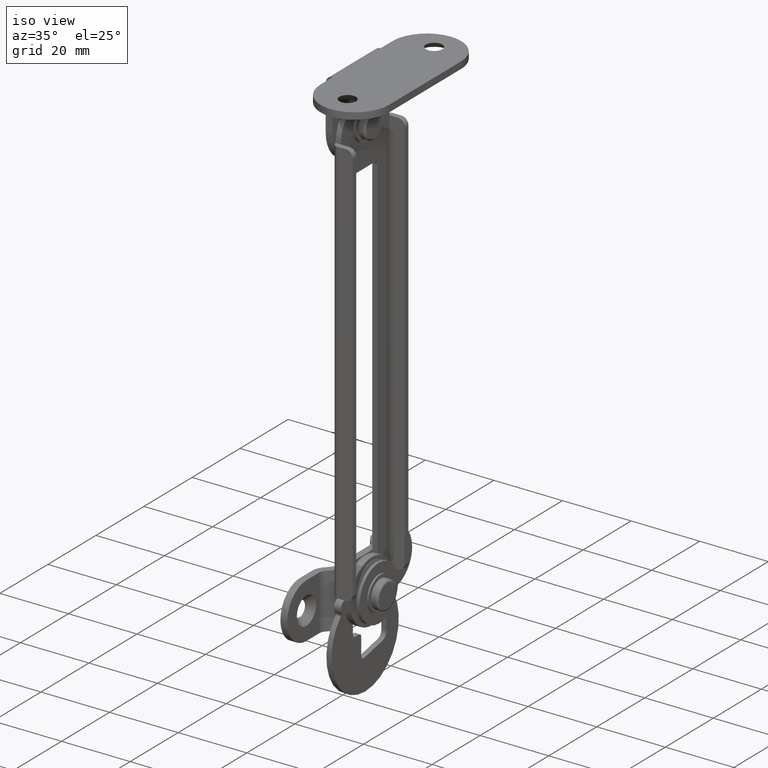
[diagram: clean part render]
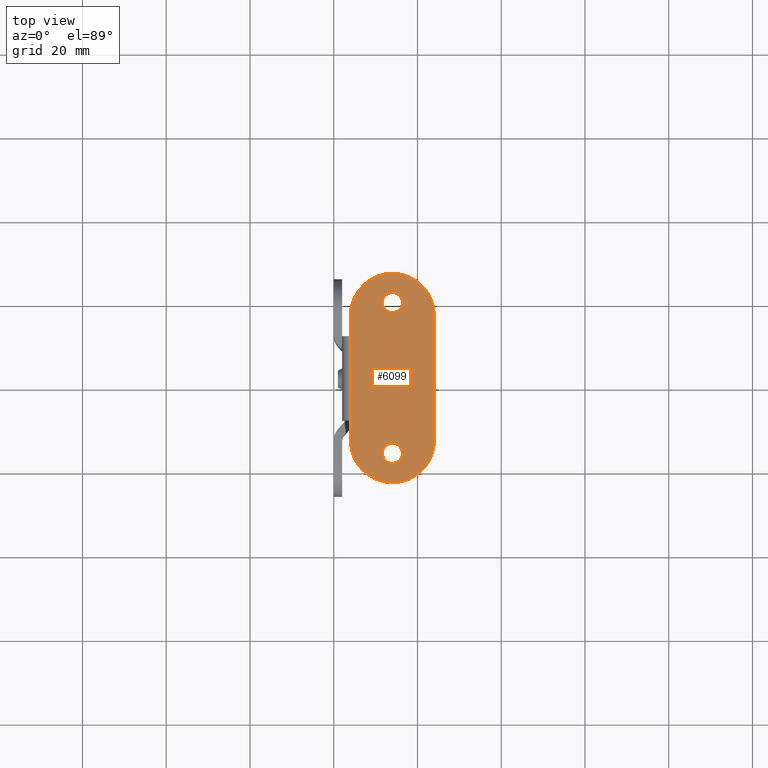
[diagram: tour spotlight — one face highlighted and labeled with its STEP entity id]
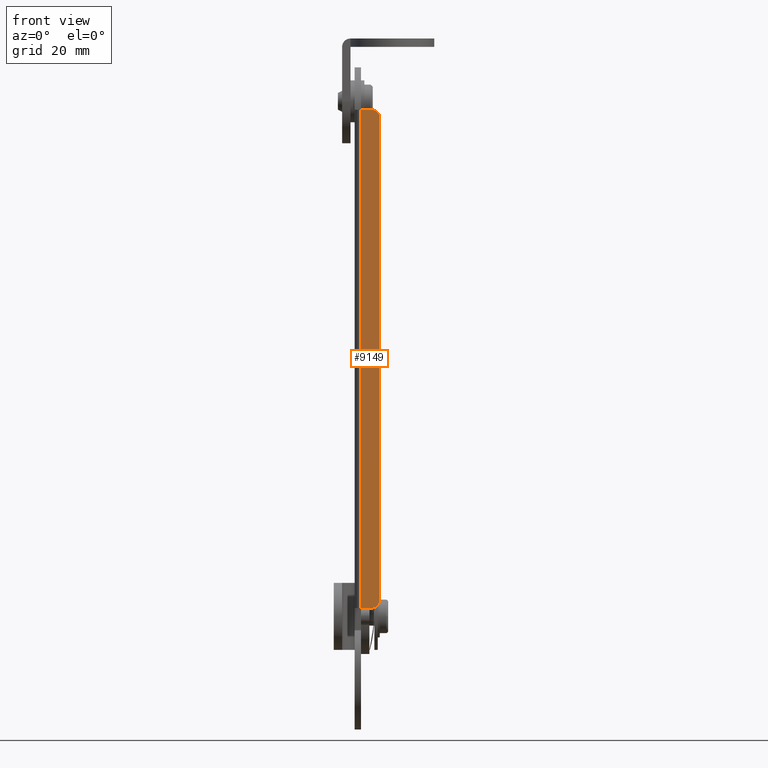
[diagram: tour spotlight — one face highlighted and labeled with its STEP entity id]
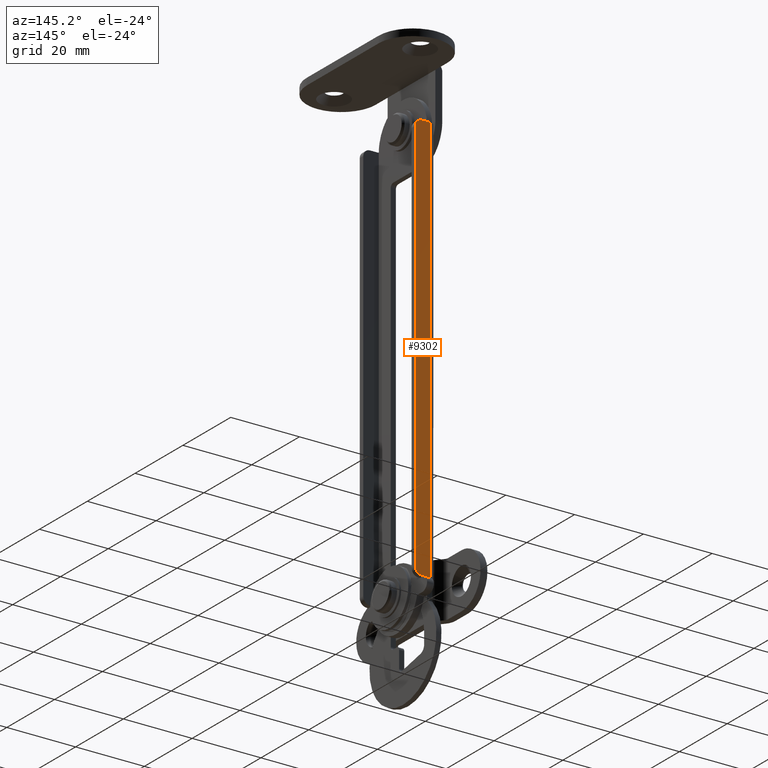
[diagram: tour spotlight — one face highlighted and labeled with its STEP entity id]
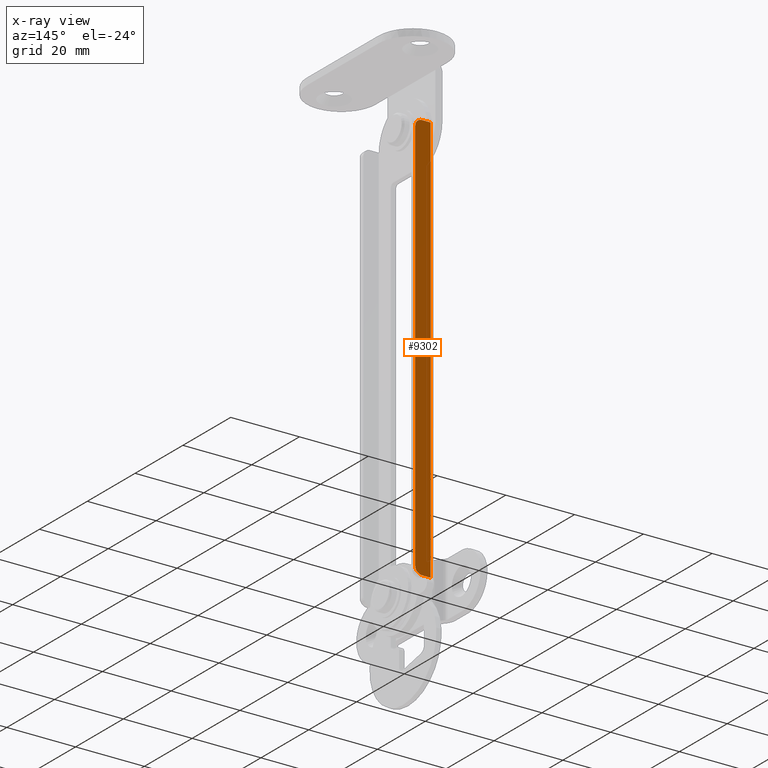
[diagram: x-ray of the same camera — body ghosted, this tour face saturated]
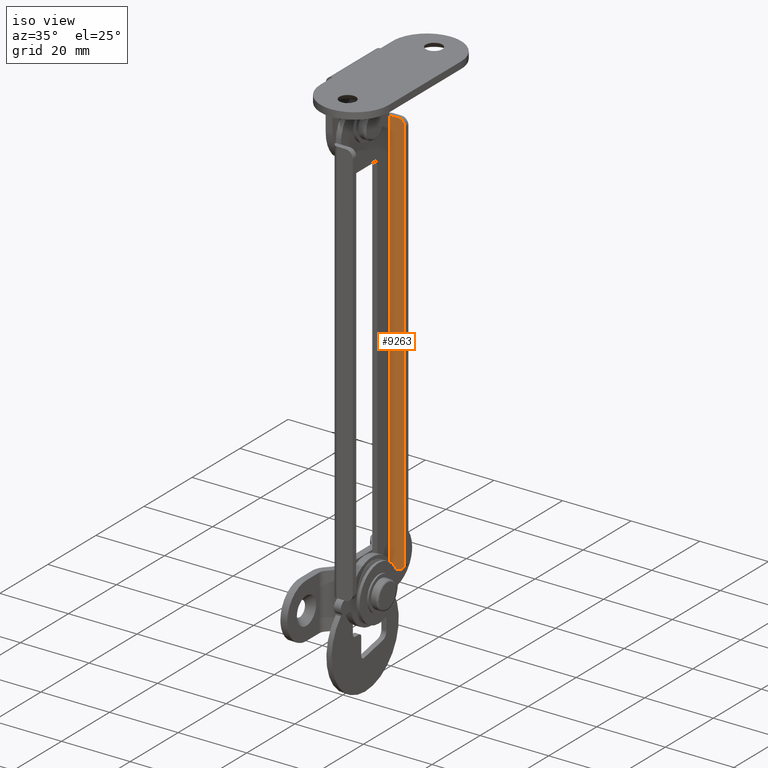
[diagram: tour spotlight — one face highlighted and labeled with its STEP entity id]
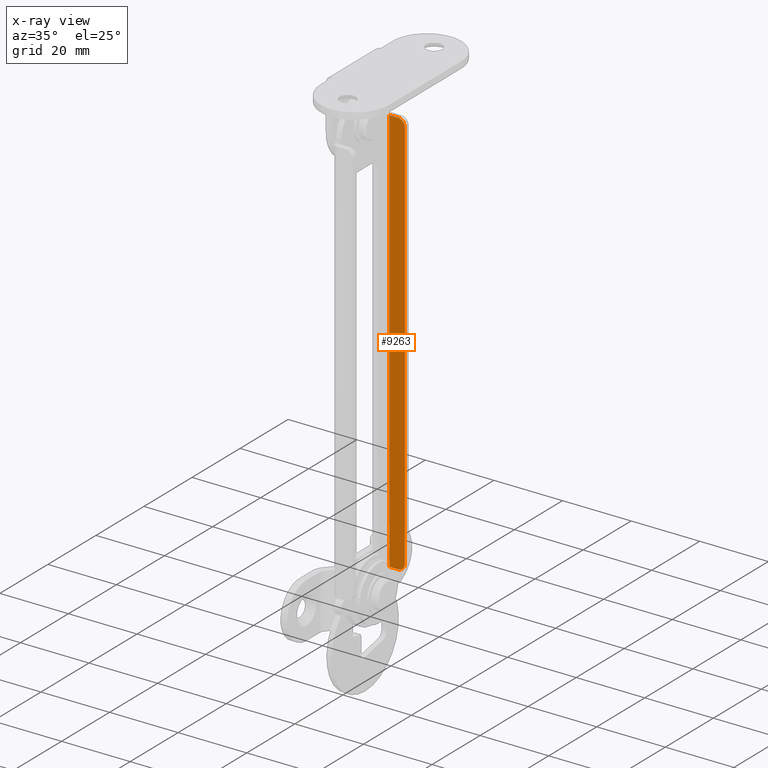
[diagram: x-ray of the same camera — body ghosted, this tour face saturated]
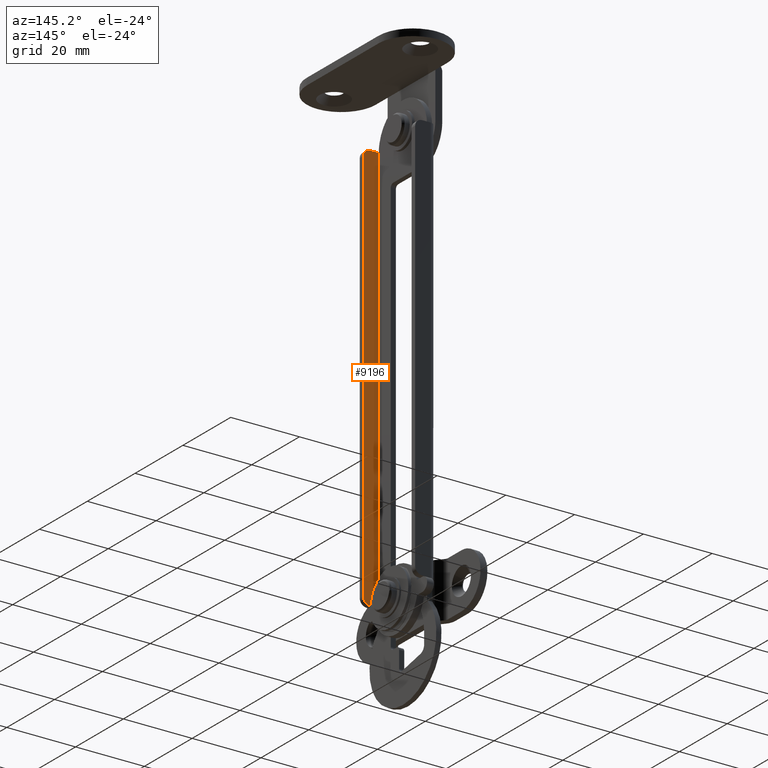
[diagram: tour spotlight — one face highlighted and labeled with its STEP entity id]
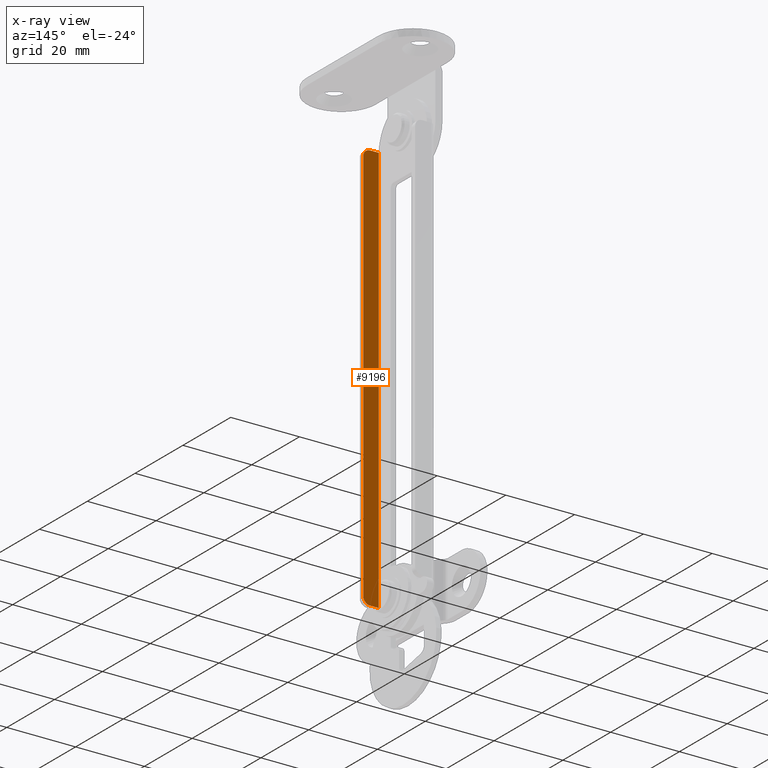
[diagram: x-ray of the same camera — body ghosted, this tour face saturated]
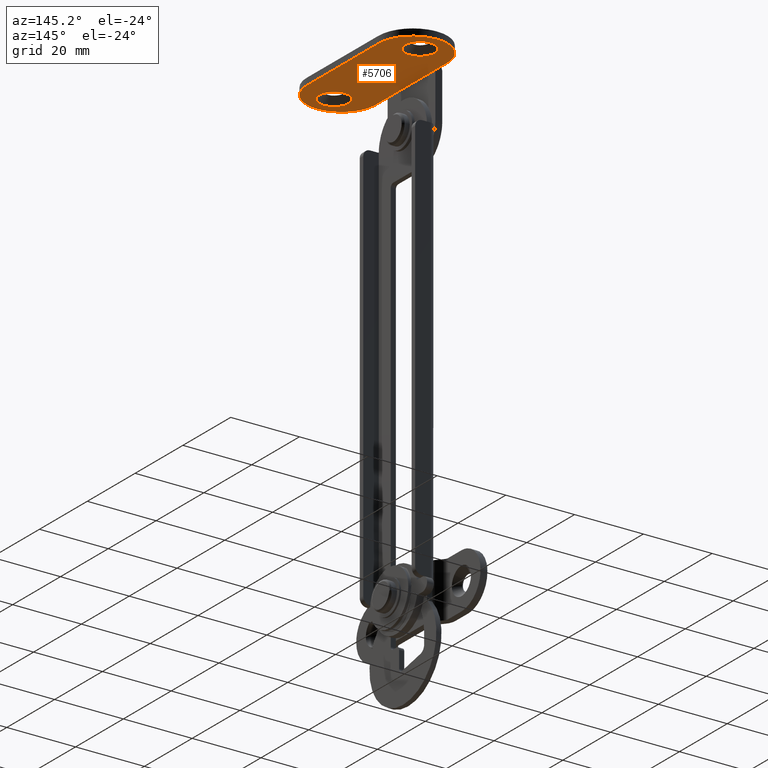
[diagram: tour spotlight — one face highlighted and labeled with its STEP entity id]
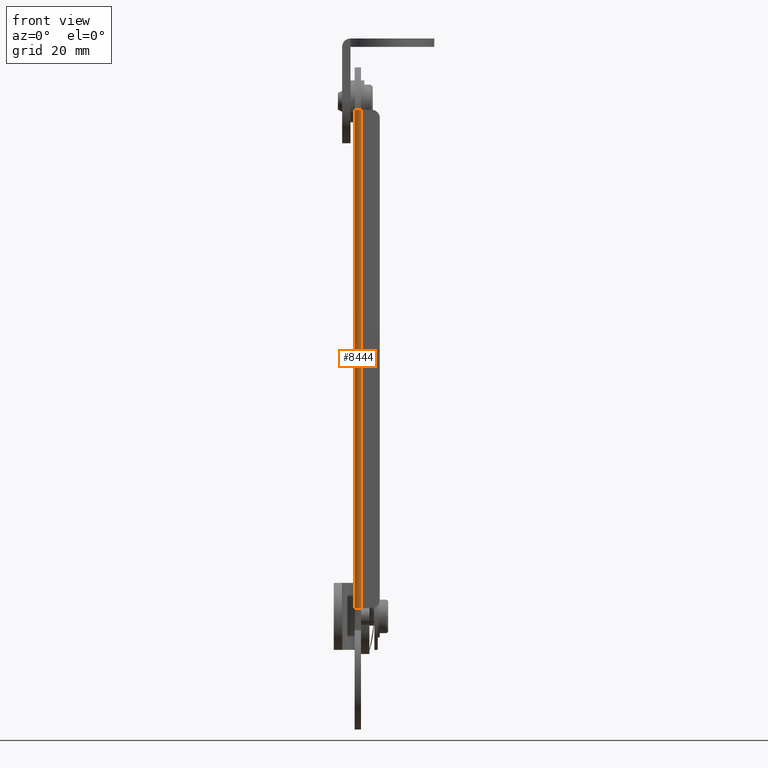
[diagram: tour spotlight — one face highlighted and labeled with its STEP entity id]
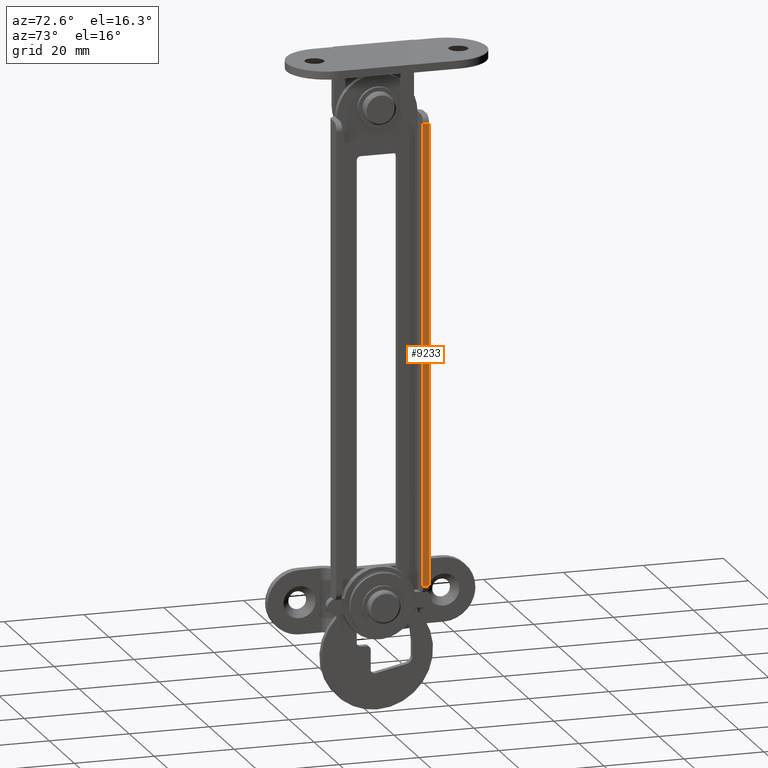
[diagram: tour spotlight — one face highlighted and labeled with its STEP entity id]
A machine part: a face-by-face anatomy tour. The part has 160 B-rep faces; the first image is the clean iso view, then the 8 largest visible faces are spotlighted one at a time (largest first), each with its STEP entity span.

Face 1 — top view, entity #6099. In plain terms, the highlighted face is a freeform B-spline surface patch.
Definition (entity closure, byte-faithful):
#4913=CARTESIAN_POINT('',(12.347956885573501,16.259101244389878,15.0));
#4914=VERTEX_POINT('',#4913);
#4920=CARTESIAN_POINT('',(14.000007718196709,15.600000000000010,15.0));
#4921=VERTEX_POINT('',#4920);
#4922=CARTESIAN_POINT('',(14.000007718196709,15.600000000000010,15.0));
#4923=CARTESIAN_POINT('',(13.658268406765099,15.599490601871050,15.000000000000041));
#4924=CARTESIAN_POINT('',(13.051394397174141,15.732107686254251,14.999999999999950));
#4925=CARTESIAN_POINT('',(12.540610137544549,16.076052513990419,15.000000000000030));
#4926=CARTESIAN_POINT('',(12.347956885573501,16.259101244389878,15.0));
#4927=B_SPLINE_CURVE_WITH_KNOTS('',3,(#4922,#4923,#4924,#4925,#4926),.UNSPECIFIED.,.F.,.U.,(4,1,4),(0.000000142798491,1.024952659112120,1.822166212537307),.UNSPECIFIED.);
#4928=EDGE_CURVE('',#4921,#4914,#4927,.T.);
#4930=CARTESIAN_POINT('',(16.400007500000179,18.0,15.0));
#4931=VERTEX_POINT('',#4930);
#4932=CARTESIAN_POINT('',(16.400007500000179,18.0,15.0));
#4933=CARTESIAN_POINT('',(16.400151335953769,17.744733984081108,15.000000000000011));
#4934=CARTESIAN_POINT('',(16.320943466111601,17.253954500845929,14.999999999999989));
#4935=CARTESIAN_POINT('',(15.981949871747471,16.580172349503361,15.000000000000011));
#4936=CARTESIAN_POINT('',(15.495815682186469,16.082066233405119,14.999999999999959));
#4937=CARTESIAN_POINT('',(14.824458672070760,15.701783452893920,15.000000000000030));
#4938=CARTESIAN_POINT('',(14.314232249544270,15.599630620939530,14.999999999999970));
#4939=CARTESIAN_POINT('',(14.000007718196709,15.600000000000010,15.0));
#4940=B_SPLINE_CURVE_WITH_KNOTS('',3,(#4932,#4933,#4934,#4935,#4936,#4937,#4938,#4939),.UNSPECIFIED.,.F.,.U.,(4,1,1,1,1,4),(0.000000672131799,0.765764721262743,1.472664300987539,2.238372745366277,2.827504415723347,3.770005663550448),.UNSPECIFIED.);
#4941=EDGE_CURVE('',#4931,#4921,#4940,.T.);
#4943=CARTESIAN_POINT('',(15.652058114426870,19.740898755610129,15.0));
#4944=VERTEX_POINT('',#4943);
#4945=CARTESIAN_POINT('',(15.652058114426870,19.740898755610129,15.0));
#4946=CARTESIAN_POINT('',(15.814006163150530,19.587319907974450,15.000000000000020));
#4947=CARTESIAN_POINT('',(16.107342896173279,19.218520356699749,14.999999999999989));
#4948=CARTESIAN_POINT('',(16.351247218366900,18.608712134711588,15.000000000000011));
#4949=CARTESIAN_POINT('',(16.400023992146281,18.182601237182020,14.999999999999980));
#4950=CARTESIAN_POINT('',(16.400007500000179,18.0,15.0));
#4951=B_SPLINE_CURVE_WITH_KNOTS('',3,(#4945,#4946,#4947,#4948,#4949,#4950),.UNSPECIFIED.,.F.,.U.,(4,1,1,4),(0.000000158112659,0.669577638241762,1.400004913981638,1.947840058921413),.UNSPECIFIED.);
#4952=EDGE_CURVE('',#4944,#4931,#4951,.T.);
#4982=CARTESIAN_POINT('',(14.000007281803670,20.399999999999991,15.0));
#4983=VERTEX_POINT('',#4982);
#4984=CARTESIAN_POINT('',(14.000007281803670,20.399999999999991,15.0));
#4985=CARTESIAN_POINT('',(14.265745478214651,20.400151736548249,14.999999999999989));
#4986=CARTESIAN_POINT('',(14.873059960330920,20.298118434686351,15.0));
#4987=CARTESIAN_POINT('',(15.404484414610890,19.976449118251232,15.000000000000030));
#4988=CARTESIAN_POINT('',(15.652058114426870,19.740898755610129,15.0));
#4989=B_SPLINE_CURVE_WITH_KNOTS('',3,(#4984,#4985,#4986,#4987,#4988),.UNSPECIFIED.,.F.,.U.,(4,1,4),(0.000000142799555,0.797213696242555,1.822166212537284),.UNSPECIFIED.);
#4990=EDGE_CURVE('',#4983,#4944,#4989,.T.);
#4992=CARTESIAN_POINT('',(11.600007500000180,18.0,15.0));
#4993=VERTEX_POINT('',#4992);
#4994=CARTESIAN_POINT('',(11.600007500000180,18.0,15.0));
#4995=CARTESIAN_POINT('',(11.599696118534149,18.314194836787362,15.000000000000020));
#4996=CARTESIAN_POINT('',(11.709542706608589,18.863763873798060,14.999999999999980));
#4997=CARTESIAN_POINT('',(12.127955818656201,19.561794268895049,15.000000000000011));
#4998=CARTESIAN_POINT('',(12.604670975629780,19.983267943394932,15.0));
#4999=CARTESIAN_POINT('',(13.234463798676551,20.309994974711682,14.999999999999940));
#5000=CARTESIAN_POINT('',(13.685774876247400,20.400368665563871,15.000000000000330));
#5001=CARTESIAN_POINT('',(14.000007281803670,20.399999999999991,15.0));
#5002=B_SPLINE_CURVE_WITH_KNOTS('',3,(#4994,#4995,#4996,#4997,#4998,#4999,#5000,#5001),.UNSPECIFIED.,.F.,.U.,(4,1,1,1,1,4),(0.000000672128724,0.942501919986014,1.649445393096084,2.415142205631684,2.827504415722412,3.770005663550496),.UNSPECIFIED.);
#5003=EDGE_CURVE('',#4993,#4983,#5002,.T.);
#5005=CARTESIAN_POINT('',(12.347956885573501,16.259101244389878,15.0));
#5006=CARTESIAN_POINT('',(12.171280508978031,16.426631782357859,14.999999999999980));
#5007=CARTESIAN_POINT('',(11.768901433188560,16.945852750813408,15.000000000000041));
#5008=CARTESIAN_POINT('',(11.598965620919520,17.593959128507571,14.999999999999980));
#5009=CARTESIAN_POINT('',(11.600007500000180,18.0,15.0));
#5010=B_SPLINE_CURVE_WITH_KNOTS('',3,(#5005,#5006,#5007,#5008,#5009),.UNSPECIFIED.,.F.,.U.,(4,1,4),(0.000000158113142,0.730465362165405,1.947840058921409),.UNSPECIFIED.);
#5011=EDGE_CURVE('',#4914,#4993,#5010,.T.);
#5244=CARTESIAN_POINT('',(12.347949385573310,-19.740898755610129,15.0));
#5245=VERTEX_POINT('',#5244);
#5251=CARTESIAN_POINT('',(14.000000218196529,-20.399999999999991,15.0));
#5252=VERTEX_POINT('',#5251);
#5253=CARTESIAN_POINT('',(14.000000218196529,-20.399999999999991,15.0));
#5254=CARTESIAN_POINT('',(13.677290968590190,-20.400379722920121,15.000000000000011));
#5255=CARTESIAN_POINT('',(13.070250720513160,-20.275517190106690,15.0));
#5256=CARTESIAN_POINT('',(12.554359430801020,-19.937053002708861,14.999999999999980));
#5257=CARTESIAN_POINT('',(12.347949385573310,-19.740898755610129,15.0));
#5258=B_SPLINE_CURVE_WITH_KNOTS('',3,(#5253,#5254,#5255,#5256,#5257),.UNSPECIFIED.,.F.,.U.,(4,1,4),(0.000000142798456,0.967982035187189,1.822166212537308),.UNSPECIFIED.);
#5259=EDGE_CURVE('',#5252,#5245,#5258,.T.);
#5261=CARTESIAN_POINT('',(16.399999999999999,-18.0,15.0));
#5262=VERTEX_POINT('',#5261);
#5263=CARTESIAN_POINT('',(16.399999999999999,-18.0,15.0));
#5264=CARTESIAN_POINT('',(16.400314604349031,-18.314205780511319,15.000000000000030));
#5265=CARTESIAN_POINT('',(16.278751046329599,-18.922679377333800,14.999999999999980));
#5266=CARTESIAN_POINT('',(15.832380985000389,-19.609019336670698,15.000000000000011));
#5267=CARTESIAN_POINT('',(15.312182246012631,-20.035543364352979,15.000000000000011));
#5268=CARTESIAN_POINT('',(14.726370759868040,-20.321499609737391,14.999999999999989));
#5269=CARTESIAN_POINT('',(14.274921426408721,-20.400209052577051,15.0));
#5270=CARTESIAN_POINT('',(14.000000218196529,-20.399999999999991,15.0));
#5271=B_SPLINE_CURVE_WITH_KNOTS('',3,(#5263,#5264,#5265,#5266,#5267,#5268,#5269,#5270),.UNSPECIFIED.,.F.,.U.,(4,1,1,1,1,4),(0.000000672130624,0.942501919987867,1.826197207197906,2.415142205632785,2.945324290207657,3.770005663550448),.UNSPECIFIED.);
#5272=EDGE_CURVE('',#5262,#5252,#5271,.T.);
#5274=CARTESIAN_POINT('',(15.652050614426690,-16.259101244389878,15.0));
#5275=VERTEX_POINT('',#5274);
#5276=CARTESIAN_POINT('',(15.652050614426690,-16.259101244389878,15.0));
#5277=CARTESIAN_POINT('',(15.873045938842280,-16.468423681619381,15.000000000000011));
#5278=CARTESIAN_POINT('',(16.257440043985529,-17.006231875165039,15.0));
#5279=CARTESIAN_POINT('',(16.400464596355810,-17.655015899431241,15.000000000000011));
#5280=CARTESIAN_POINT('',(16.399999999999999,-18.0,15.0));
#5281=B_SPLINE_CURVE_WITH_KNOTS('',3,(#5276,#5277,#5278,#5279,#5280),.UNSPECIFIED.,.F.,.U.,(4,1,4),(0.000000158112858,0.913091636625019,1.947840058921408),.UNSPECIFIED.);
#5282=EDGE_CURVE('',#5275,#5262,#5281,.T.);
#5312=CARTESIAN_POINT('',(13.999999781803490,-15.600000000000010,15.0));
#5313=VERTEX_POINT('',#5312);
#5314=CARTESIAN_POINT('',(13.999999781803490,-15.600000000000010,15.0));
#5315=CARTESIAN_POINT('',(14.227767786803501,-15.599932802735390,15.000000000000011));
#5316=CARTESIAN_POINT('',(14.835158122947201,-15.687031054646960,14.999999999999989));
#5317=CARTESIAN_POINT('',(15.377113586349800,-15.997093775491980,15.000000000000011));
#5318=CARTESIAN_POINT('',(15.652050614426690,-16.259101244389878,15.0));
#5319=B_SPLINE_CURVE_WITH_KNOTS('',3,(#5314,#5315,#5316,#5317,#5318),.UNSPECIFIED.,.F.,.U.,(4,1,4),(0.000000142799108,0.683330382271609,1.822166212537295),.UNSPECIFIED.);
#5320=EDGE_CURVE('',#5313,#5275,#5319,.T.);
#5322=CARTESIAN_POINT('',(11.600000000000000,-18.0,15.0));
#5323=VERTEX_POINT('',#5322);
#5324=CARTESIAN_POINT('',(11.600000000000000,-18.0,15.0));
#5325=CARTESIAN_POINT('',(11.599876375192711,-17.725119587979599,14.999999999999989));
#5326=CARTESIAN_POINT('',(11.702131856238699,-17.136039369277711,15.000000000000030));
#5327=CARTESIAN_POINT('',(12.103364419698231,-16.466531351891941,14.999999999999959));
#5328=CARTESIAN_POINT('',(12.636416259388760,-15.995599457872890,15.000000000000030));
#5329=CARTESIAN_POINT('',(13.234322578632220,-15.685260660864280,14.999999999999940));
#5330=CARTESIAN_POINT('',(13.725099112892250,-15.599820716637121,15.000000000000020));
#5331=CARTESIAN_POINT('',(13.999999781803490,-15.600000000000010,15.0));
#5332=B_SPLINE_CURVE_WITH_KNOTS('',3,(#5324,#5325,#5326,#5327,#5328,#5329,#5330,#5331),.UNSPECIFIED.,.F.,.U.,(4,1,1,1,1,4),(0.000000672129982,0.824682045485086,1.767238113277507,2.297342035173502,2.945324290207652,3.770005663550458),.UNSPECIFIED.);
#5333=EDGE_CURVE('',#5323,#5313,#5332,.T.);
#5335=CARTESIAN_POINT('',(12.347949385573310,-19.740898755610129,15.0));
#5336=CARTESIAN_POINT('',(12.082551629608581,-19.489864362118521,14.999999999999970));
#5337=CARTESIAN_POINT('',(11.716562317506019,-18.933237332026771,15.000000000000050));
#5338=CARTESIAN_POINT('',(11.599834756628130,-18.284068813952111,14.999999999999970));
#5339=CARTESIAN_POINT('',(11.600000000000000,-18.0,15.0));
#5340=B_SPLINE_CURVE_WITH_KNOTS('',3,(#5335,#5336,#5337,#5338,#5339),.UNSPECIFIED.,.F.,.U.,(4,1,4),(0.000000158113741,1.095632738527248,1.947840058921412),.UNSPECIFIED.);
#5341=EDGE_CURVE('',#5245,#5323,#5340,.T.);
#5721=CARTESIAN_POINT('',(4.000000000000116,-10.0,15.0));
#5722=VERTEX_POINT('',#5721);
#5735=CARTESIAN_POINT('',(4.000000000000116,10.0,15.0));
#5736=VERTEX_POINT('',#5735);
#5737=CARTESIAN_POINT('',(4.000000000000116,10.0,15.0));
#5738=CARTESIAN_POINT('',(4.000000000000116,-10.0,15.0));
#5739=QUASI_UNIFORM_CURVE('',1,(#5737,#5738),.UNSPECIFIED.,.F.,.U.);
#5740=EDGE_CURVE('',#5736,#5722,#5739,.T.);
#5909=CARTESIAN_POINT('',(24.0,-15.0,15.0));
#5910=VERTEX_POINT('',#5909);
#5916=CARTESIAN_POINT('',(14.000003361668989,-24.999999999999439,15.0));
#5917=VERTEX_POINT('',#5916);
#5918=CARTESIAN_POINT('',(14.000003361668989,-24.999999999999439,15.0));
#5919=CARTESIAN_POINT('',(15.022729666349299,-25.000490860896061,15.000000000000030));
#5920=CARTESIAN_POINT('',(16.576785758285379,-24.759364490591960,14.999999999999931));
#5921=CARTESIAN_POINT('',(18.743361944081141,-23.877469670000789,15.000000000000149));
#5922=CARTESIAN_POINT('',(20.324962440598451,-22.834645945553170,14.999999999999661));
#5923=CARTESIAN_POINT('',(21.747442920411480,-21.412005612386810,15.000000000000419));
#5924=CARTESIAN_POINT('',(22.980264776529339,-19.615791448912031,14.999999999999879));
#5925=CARTESIAN_POINT('',(23.814153744835391,-17.413496027127209,14.999999999999989));
#5926=CARTESIAN_POINT('',(24.000077966363040,-15.736285810651630,15.000000000000050));
#5927=CARTESIAN_POINT('',(24.0,-15.0,15.0));
#5928=B_SPLINE_CURVE_WITH_KNOTS('',3,(#5918,#5919,#5920,#5921,#5922,#5923,#5924,#5925,#5926,#5927),.UNSPECIFIED.,.F.,.U.,(4,1,1,1,1,1,1,4),(0.000000330259731,3.067958642351686,4.663341824999101,6.995036886880572,8.713028646519067,10.676542910369511,13.499163713574420,15.708059934073740),.UNSPECIFIED.);
#5929=EDGE_CURVE('',#5917,#5910,#5928,.T.);
#5931=CARTESIAN_POINT('',(4.000000000000116,-15.0,15.0));
#5932=VERTEX_POINT('',#5931);
#5933=CARTESIAN_POINT('',(4.000000000000116,-15.0,15.0));
#5934=CARTESIAN_POINT('',(3.999222219361760,-16.145440467912699,15.000000000000020));
#5935=CARTESIAN_POINT('',(4.355293764706326,-18.190323548056408,14.999999999999989));
#5936=CARTESIAN_POINT('',(5.591226498261106,-20.571840189789590,15.000000000000020));
#5937=CARTESIAN_POINT('',(7.189682792197223,-22.448183822484680,14.999999999999959));
#5938=CARTESIAN_POINT('',(8.989617737739900,-23.766157392730310,15.000000000000030));
#5939=CARTESIAN_POINT('',(11.382252371222640,-24.756959691096821,15.0));
#5940=CARTESIAN_POINT('',(13.018204418070940,-25.000465452644999,15.000000000000011));
#5941=CARTESIAN_POINT('',(14.000003361668989,-24.999999999999439,15.0));
#5942=B_SPLINE_CURVE_WITH_KNOTS('',3,(#5933,#5934,#5935,#5936,#5937,#5938,#5939,#5940,#5941),.UNSPECIFIED.,.F.,.U.,(4,1,1,1,1,1,4),(0.000000329089820,3.436135206012512,6.136006754440505,7.976650897059515,10.799285739069060,12.762810007434521,15.708063723481930),.UNSPECIFIED.);
#5943=EDGE_CURVE('',#5932,#5917,#5942,.T.);
#5973=CARTESIAN_POINT('',(13.999996638331130,24.999999999999439,15.0));
#5974=VERTEX_POINT('',#5973);
#5975=CARTESIAN_POINT('',(4.000000000000116,15.0,15.0));
#5976=VERTEX_POINT('',#5975);
#5977=CARTESIAN_POINT('',(13.999996638331130,24.999999999999439,15.0));
#5978=CARTESIAN_POINT('',(12.977293444910890,25.000467335651081,15.0));
#5979=CARTESIAN_POINT('',(11.300436446960690,24.740439052667369,15.000000000000041));
#5980=CARTESIAN_POINT('',(9.335985993358429,23.898094346418549,14.999999999999970));
#5981=CARTESIAN_POINT('',(7.921365483178941,22.990081095690279,15.000000000000080));
#5982=CARTESIAN_POINT('',(6.783369660817556,21.983811620215459,15.000000000000179));
#5983=CARTESIAN_POINT('',(5.586279139213805,20.525380595127540,14.999999999999799));
#5984=CARTESIAN_POINT('',(4.381456855687124,18.271851796640899,15.000000000000160));
#5985=CARTESIAN_POINT('',(3.998907650447908,16.227343053102050,14.999999999999870));
#5986=CARTESIAN_POINT('',(4.000000000000116,15.0,15.0));
#5987=B_SPLINE_CURVE_WITH_KNOTS('',3,(#5977,#5978,#5979,#5980,#5981,#5982,#5983,#5984,#5985,#5986),.UNSPECIFIED.,.F.,.U.,(4,1,1,1,1,1,1,4),(0.000000330251460,3.067958642344946,5.031519768432458,6.381417196637896,8.099408765125634,9.572061320586148,12.026489566835160,15.708059934073800),.UNSPECIFIED.);
#5988=EDGE_CURVE('',#5974,#5976,#5987,.T.);
#5990=CARTESIAN_POINT('',(24.0,15.0,15.0));
#5991=VERTEX_POINT('',#5990);
#5992=CARTESIAN_POINT('',(24.0,15.0,15.0));
#5993=CARTESIAN_POINT('',(24.000133670223448,15.777221255572099,14.999999999999980));
#5994=CARTESIAN_POINT('',(23.817921153582869,17.331609171556781,15.000000000000041));
#5995=CARTESIAN_POINT('',(23.112317791802742,19.266187176152862,14.999999999999959));
#5996=CARTESIAN_POINT('',(22.121111895228282,20.919668192155711,15.000000000000020));
#5997=CARTESIAN_POINT('',(20.859361294667949,22.382536071436292,15.000000000000011));
#5998=CARTESIAN_POINT('',(18.883796797591678,23.867144045645940,15.0));
#5999=CARTESIAN_POINT('',(16.495363595018912,24.805255470169641,14.999999999999989));
#6000=CARTESIAN_POINT('',(14.736269730555090,25.000039504284690,15.000000000000011));
#6001=CARTESIAN_POINT('',(13.999996638331130,24.999999999999439,15.0));
#6002=B_SPLINE_CURVE_WITH_KNOTS('',3,(#5992,#5993,#5994,#5995,#5996,#5997,#5998,#5999,#6000,#6001),.UNSPECIFIED.,.F.,.U.,(4,1,1,1,1,1,1,4),(0.000000329079755,2.331653504292650,4.663342949355373,6.136006754437043,8.099410723542924,10.431110425632451,13.499166971033651,15.708063723481921),.UNSPECIFIED.);
#6003=EDGE_CURVE('',#5991,#5974,#6002,.T.);
#6027=CARTESIAN_POINT('',(24.0,15.0,15.0));
#6028=CARTESIAN_POINT('',(24.0,-15.0,15.0));
#6029=QUASI_UNIFORM_CURVE('',1,(#6027,#6028),.UNSPECIFIED.,.F.,.U.);
#6030=EDGE_CURVE('',#5991,#5910,#6029,.T.);
#6042=CARTESIAN_POINT('',(4.000000000000116,15.0,15.0));
#6043=CARTESIAN_POINT('',(4.000000000000116,10.0,15.0));
#6044=QUASI_UNIFORM_CURVE('',1,(#6042,#6043),.UNSPECIFIED.,.F.,.U.);
#6045=EDGE_CURVE('',#5976,#5736,#6044,.T.);
#6060=CARTESIAN_POINT('',(4.000000000000116,-10.0,15.0));
#6061=CARTESIAN_POINT('',(4.000000000000116,-15.0,15.0));
#6062=QUASI_UNIFORM_CURVE('',1,(#6060,#6061),.UNSPECIFIED.,.F.,.U.);
#6063=EDGE_CURVE('',#5722,#5932,#6062,.T.);
#6068=CARTESIAN_POINT('',(24.998999961236120,-27.497499903089679,15.0));
#6069=CARTESIAN_POINT('',(3.000999502322198,-27.497499903089679,15.0));
#6070=CARTESIAN_POINT('',(24.998999961236120,27.497501244194179,15.0));
#6071=CARTESIAN_POINT('',(3.000999502322198,27.497501244194179,15.0));
#6072=B_SPLINE_SURFACE_WITH_KNOTS('',1,1,((#6068,#6070),(#6069,#6071)),.UNSPECIFIED.,.F.,.F.,.U.,(2,2),(2,2),(0.0,21.998000458913921),(0.0,54.995001147283858),.UNSPECIFIED.);
#6073=ORIENTED_EDGE('',*,*,#6045,.T.);
#6074=ORIENTED_EDGE('',*,*,#5740,.T.);
#6075=ORIENTED_EDGE('',*,*,#6063,.T.);
#6076=ORIENTED_EDGE('',*,*,#5943,.T.);
#6077=ORIENTED_EDGE('',*,*,#5929,.T.);
#6078=ORIENTED_EDGE('',*,*,#6030,.F.);
#6079=ORIENTED_EDGE('',*,*,#6003,.T.);
#6080=ORIENTED_EDGE('',*,*,#5988,.T.);
#6081=EDGE_LOOP('',(#6073,#6074,#6075,#6076,#6077,#6078,#6079,#6080));
#6082=FACE_OUTER_BOUND('',#6081,.T.);
#6083=ORIENTED_EDGE('',*,*,#5333,.T.);
#6084=ORIENTED_EDGE('',*,*,#5320,.T.);
#6085=ORIENTED_EDGE('',*,*,#5282,.T.);
#6086=ORIENTED_EDGE('',*,*,#5272,.T.);
#6087=ORIENTED_EDGE('',*,*,#5259,.T.);
#6088=ORIENTED_EDGE('',*,*,#5341,.T.);
#6089=EDGE_LOOP('',(#6083,#6084,#6085,#6086,#6087,#6088));
#6090=FACE_BOUND('',#6089,.T.);
#6091=ORIENTED_EDGE('',*,*,#5003,.T.);
#6092=ORIENTED_EDGE('',*,*,#4990,.T.);
#6093=ORIENTED_EDGE('',*,*,#4952,.T.);
#6094=ORIENTED_EDGE('',*,*,#4941,.T.);
#6095=ORIENTED_EDGE('',*,*,#4928,.T.);
#6096=ORIENTED_EDGE('',*,*,#5011,.T.);
#6097=EDGE_LOOP('',(#6091,#6092,#6093,#6094,#6095,#6096));
#6098=FACE_BOUND('',#6097,.T.);
#6099=ADVANCED_FACE('',(#6082,#6090,#6098),#6072,.F.);

Face 2 — front view, entity #9149. In plain terms, the highlighted face is a freeform B-spline surface patch.
Definition (entity closure, byte-faithful):
#8412=CARTESIAN_POINT('',(6.500000000000000,-11.600007000000000,-121.000015000000000));
#8413=VERTEX_POINT('',#8412);
#8424=CARTESIAN_POINT('',(6.500000000000000,-11.600007000000000,-2.0));
#8425=VERTEX_POINT('',#8424);
#8426=CARTESIAN_POINT('',(6.500000000000000,-11.600007000000000,-2.0));
#8427=CARTESIAN_POINT('',(6.500000000000000,-11.600007000000000,-121.000015000000000));
#8428=QUASI_UNIFORM_CURVE('',1,(#8426,#8427),.UNSPECIFIED.,.F.,.U.);
#8429=EDGE_CURVE('',#8425,#8413,#8428,.T.);
#8459=CARTESIAN_POINT('',(11.0,-11.600007000000000,-4.0));
#8460=VERTEX_POINT('',#8459);
#8461=CARTESIAN_POINT('',(9.000000000000119,-11.600007000000000,-2.0));
#8462=VERTEX_POINT('',#8461);
#8463=CARTESIAN_POINT('',(11.0,-11.600007000000000,-4.0));
#8464=CARTESIAN_POINT('',(11.000069899677740,-11.600007000000019,-3.803651738308835));
#8465=CARTESIAN_POINT('',(10.941702832675441,-11.600006999999980,-3.410990430720568));
#8466=CARTESIAN_POINT('',(10.659029210322871,-11.600006999999980,-2.812766942475834));
#8467=CARTESIAN_POINT('',(10.163672380033930,-11.600007000000080,-2.317299307650242));
#8468=CARTESIAN_POINT('',(9.556329504966698,-11.600006999999909,-2.048393168183071));
#8469=CARTESIAN_POINT('',(9.163611523757977,-11.600007000000071,-1.999971367352582));
#8470=CARTESIAN_POINT('',(9.000000000000119,-11.600007000000000,-2.0));
#8471=B_SPLINE_CURVE_WITH_KNOTS('',3,(#8463,#8464,#8465,#8466,#8467,#8468,#8469,#8470),.UNSPECIFIED.,.F.,.U.,(4,1,1,1,1,4),(0.000000633080024,0.589043779903838,1.178173080460005,1.963502041530594,2.650821102329483,3.141671488830869),.UNSPECIFIED.);
#8472=EDGE_CURVE('',#8460,#8462,#8471,.T.);
#8643=CARTESIAN_POINT('',(11.0,-11.600007000000000,-119.000015000000000));
#8644=VERTEX_POINT('',#8643);
#8650=CARTESIAN_POINT('',(9.000000000000119,-11.600007000000000,-121.000015000000000));
#8651=VERTEX_POINT('',#8650);
#8652=CARTESIAN_POINT('',(9.000000000000119,-11.600007000000000,-121.000015000000000));
#8653=CARTESIAN_POINT('',(9.360126660927168,-11.600007000000010,-121.000997479734810));
#8654=CARTESIAN_POINT('',(10.013741257389890,-11.600006999999991,-120.818414027858790));
#8655=CARTESIAN_POINT('',(10.608532133550931,-11.600007000000019,-120.251985538794600));
#8656=CARTESIAN_POINT('',(10.926706012448131,-11.600006999999991,-119.637985155626100));
#8657=CARTESIAN_POINT('',(11.000226081856900,-11.600007000000019,-119.245490366533200));
#8658=CARTESIAN_POINT('',(11.0,-11.600007000000000,-119.000015000000000));
#8659=B_SPLINE_CURVE_WITH_KNOTS('',3,(#8652,#8653,#8654,#8655,#8656,#8657,#8658),.UNSPECIFIED.,.F.,.U.,(4,1,1,1,4),(0.000000633079498,1.079987988764582,1.963502041531082,2.405343544169165,3.141671488830836),.UNSPECIFIED.);
#8660=EDGE_CURVE('',#8651,#8644,#8659,.T.);
#9113=CARTESIAN_POINT('',(11.0,-11.600007000000000,-119.000015000000000));
#9114=CARTESIAN_POINT('',(11.0,-11.600007000000000,-4.0));
#9115=QUASI_UNIFORM_CURVE('',1,(#9113,#9114),.UNSPECIFIED.,.F.,.U.);
#9116=EDGE_CURVE('',#8644,#8460,#9115,.T.);
#9128=CARTESIAN_POINT('',(6.275225008721872,-11.600007000000000,3.944050518604876));
#9129=CARTESIAN_POINT('',(6.275225008721872,-11.600007000000000,-126.944068710434000));
#9130=CARTESIAN_POINT('',(11.224775111977531,-11.600007000000000,3.944050518604876));
#9131=CARTESIAN_POINT('',(11.224775111977531,-11.600007000000000,-126.944068710434000));
#9132=B_SPLINE_SURFACE_WITH_KNOTS('',1,1,((#9128,#9130),(#9129,#9131)),.UNSPECIFIED.,.F.,.F.,.U.,(2,2),(2,2),(0.0,130.888119229038890),(0.0,4.949550103255660),.UNSPECIFIED.);
#9133=CARTESIAN_POINT('',(9.000000000000119,-11.600007000000000,-2.0));
#9134=CARTESIAN_POINT('',(6.500000000000000,-11.600007000000000,-2.0));
#9135=QUASI_UNIFORM_CURVE('',1,(#9133,#9134),.UNSPECIFIED.,.F.,.U.);
#9136=EDGE_CURVE('',#8462,#8425,#9135,.T.);
#9137=ORIENTED_EDGE('',*,*,#9136,.T.);
#9138=ORIENTED_EDGE('',*,*,#8429,.T.);
#9139=CARTESIAN_POINT('',(9.000000000000119,-11.600007000000000,-121.000015000000000));
#9140=CARTESIAN_POINT('',(6.500000000000000,-11.600007000000000,-121.000015000000000));
#9141=QUASI_UNIFORM_CURVE('',1,(#9139,#9140),.UNSPECIFIED.,.F.,.U.);
#9142=EDGE_CURVE('',#8651,#8413,#9141,.T.);
#9143=ORIENTED_EDGE('',*,*,#9142,.F.);
#9144=ORIENTED_EDGE('',*,*,#8660,.T.);
#9145=ORIENTED_EDGE('',*,*,#9116,.T.);
#9146=ORIENTED_EDGE('',*,*,#8472,.T.);
#9147=EDGE_LOOP('',(#9137,#9138,#9143,#9144,#9145,#9146));
#9148=FACE_OUTER_BOUND('',#9147,.T.);
#9149=ADVANCED_FACE('',(#9148),#9132,.T.);

Face 3 — auxiliary view, entity #9302. An x-ray twin of the same camera follows (body ghosted, this face saturated) — the face is partly hidden behind the body. In plain terms, the highlighted face is a freeform B-spline surface patch.
Definition (entity closure, byte-faithful):
#8364=CARTESIAN_POINT('',(6.500000000000000,11.600006000000180,-2.0));
#8365=VERTEX_POINT('',#8364);
#8376=CARTESIAN_POINT('',(6.500000000000000,11.600006000000180,-121.000015000000000));
#8377=VERTEX_POINT('',#8376);
#8378=CARTESIAN_POINT('',(6.500000000000000,11.600006000000180,-121.000015000000000));
#8379=CARTESIAN_POINT('',(6.500000000000000,11.600006000000180,-2.0));
#8380=QUASI_UNIFORM_CURVE('',1,(#8378,#8379),.UNSPECIFIED.,.F.,.U.);
#8381=EDGE_CURVE('',#8377,#8365,#8380,.T.);
#8531=CARTESIAN_POINT('',(11.0,11.600006000000180,-4.0));
#8532=VERTEX_POINT('',#8531);
#8538=CARTESIAN_POINT('',(9.000000000000119,11.600006000000180,-2.0));
#8539=VERTEX_POINT('',#8538);
#8540=CARTESIAN_POINT('',(9.000000000000119,11.600006000000180,-2.0));
#8541=CARTESIAN_POINT('',(9.163609799962920,11.600006000000191,-1.999980338659633));
#8542=CARTESIAN_POINT('',(9.556367306183125,11.600006000000180,-2.048356787961522));
#8543=CARTESIAN_POINT('',(10.057233166205270,11.600006000000180,-2.270359711713155));
#8544=CARTESIAN_POINT('',(10.523381635410590,11.600006000000160,-2.662592010198478));
#8545=CARTESIAN_POINT('',(10.892438384160560,11.600006000000210,-3.214766650463893));
#8546=CARTESIAN_POINT('',(11.000337623155630,11.600006000000150,-3.721801830602515));
#8547=CARTESIAN_POINT('',(11.0,11.600006000000180,-4.0));
#8548=B_SPLINE_CURVE_WITH_KNOTS('',3,(#8540,#8541,#8542,#8543,#8544,#8545,#8546,#8547),.UNSPECIFIED.,.F.,.U.,(4,1,1,1,1,4),(0.000000633080364,0.490859883980974,1.178173080460091,1.619829693506787,2.307164052973284,3.141671488830840),.UNSPECIFIED.);
#8549=EDGE_CURVE('',#8539,#8532,#8548,.T.);
#8573=CARTESIAN_POINT('',(11.0,11.600006000000180,-119.000015000000000));
#8574=VERTEX_POINT('',#8573);
#8575=CARTESIAN_POINT('',(9.000000000000119,11.600006000000180,-121.000015000000000));
#8576=VERTEX_POINT('',#8575);
#8577=CARTESIAN_POINT('',(11.0,11.600006000000180,-119.000015000000000));
#8578=CARTESIAN_POINT('',(11.000513582882110,11.600006000000191,-119.311037276519800));
#8579=CARTESIAN_POINT('',(10.890961684781290,11.600006000000141,-119.768588200383310));
#8580=CARTESIAN_POINT('',(10.504833750479809,11.600006000000240,-120.362039779837600));
#8581=CARTESIAN_POINT('',(9.932028223956143,11.600006000000089,-120.844427257047400));
#8582=CARTESIAN_POINT('',(9.343743260093099,11.600006000000240,-121.000756272631090));
#8583=CARTESIAN_POINT('',(9.000000000000119,11.600006000000180,-121.000015000000000));
#8584=B_SPLINE_CURVE_WITH_KNOTS('',3,(#8577,#8578,#8579,#8580,#8581,#8582,#8583),.UNSPECIFIED.,.F.,.U.,(4,1,1,1,4),(0.000000633073592,0.932686972904734,1.374526102819505,2.110794237615133,3.141671488830847),.UNSPECIFIED.);
#8585=EDGE_CURVE('',#8574,#8576,#8584,.T.);
#9225=CARTESIAN_POINT('',(11.0,11.600006000000180,-4.0));
#9226=CARTESIAN_POINT('',(11.0,11.600006000000180,-119.000015000000000));
#9227=QUASI_UNIFORM_CURVE('',1,(#9225,#9226),.UNSPECIFIED.,.F.,.U.);
#9228=EDGE_CURVE('',#8532,#8574,#9227,.T.);
#9275=CARTESIAN_POINT('',(9.000000000000119,11.600006000000180,-121.000015000000000));
#9276=CARTESIAN_POINT('',(6.500000000000000,11.600006000000180,-121.000015000000000));
#9277=QUASI_UNIFORM_CURVE('',1,(#9275,#9276),.UNSPECIFIED.,.F.,.U.);
#9278=EDGE_CURVE('',#8576,#8377,#9277,.T.);
#9285=CARTESIAN_POINT('',(6.275225008721872,11.600006000000180,-126.944065518604900));
#9286=CARTESIAN_POINT('',(6.275225008721872,11.600006000000180,3.944053710434003));
#9287=CARTESIAN_POINT('',(11.224775111977531,11.600006000000180,-126.944065518604900));
#9288=CARTESIAN_POINT('',(11.224775111977531,11.600006000000180,3.944053710434003));
#9289=B_SPLINE_SURFACE_WITH_KNOTS('',1,1,((#9285,#9287),(#9286,#9288)),.UNSPECIFIED.,.F.,.F.,.U.,(2,2),(2,2),(0.0,130.888119229038890),(0.0,4.949550103255660),.UNSPECIFIED.);
#9290=ORIENTED_EDGE('',*,*,#9278,.T.);
#9291=ORIENTED_EDGE('',*,*,#8381,.T.);
#9292=CARTESIAN_POINT('',(9.000000000000119,11.600006000000180,-2.0));
#9293=CARTESIAN_POINT('',(6.500000000000000,11.600006000000180,-2.0));
#9294=QUASI_UNIFORM_CURVE('',1,(#9292,#9293),.UNSPECIFIED.,.F.,.U.);
#9295=EDGE_CURVE('',#8539,#8365,#9294,.T.);
#9296=ORIENTED_EDGE('',*,*,#9295,.F.);
#9297=ORIENTED_EDGE('',*,*,#8549,.T.);
#9298=ORIENTED_EDGE('',*,*,#9228,.T.);
#9299=ORIENTED_EDGE('',*,*,#8585,.T.);
#9300=EDGE_LOOP('',(#9290,#9291,#9296,#9297,#9298,#9299));
#9301=FACE_OUTER_BOUND('',#9300,.T.);
#9302=ADVANCED_FACE('',(#9301),#9289,.T.);

Face 4 — iso view, entity #9263. An x-ray twin of the same camera follows (body ghosted, this face saturated) — the face is partly hidden behind the body. In plain terms, the highlighted face is a freeform B-spline surface patch.
Definition (entity closure, byte-faithful):
#8516=CARTESIAN_POINT('',(11.0,10.100006000000061,-4.0));
#8517=VERTEX_POINT('',#8516);
#8518=CARTESIAN_POINT('',(9.000000000000119,10.100006000000061,-2.0));
#8519=VERTEX_POINT('',#8518);
#8520=CARTESIAN_POINT('',(11.0,10.100006000000061,-4.0));
#8521=CARTESIAN_POINT('',(11.000069899677730,10.100006000000080,-3.803651738308831));
#8522=CARTESIAN_POINT('',(10.941702832675441,10.100006000000040,-3.410990430720569));
#8523=CARTESIAN_POINT('',(10.659029210322879,10.100006000000040,-2.812766942475835));
#8524=CARTESIAN_POINT('',(10.163672380033921,10.100006000000141,-2.317299307650242));
#8525=CARTESIAN_POINT('',(9.556329504966699,10.100005999999979,-2.048393168183071));
#8526=CARTESIAN_POINT('',(9.163611523757977,10.100006000000130,-1.999971367352582));
#8527=CARTESIAN_POINT('',(9.000000000000119,10.100006000000061,-2.0));
#8528=B_SPLINE_CURVE_WITH_KNOTS('',3,(#8520,#8521,#8522,#8523,#8524,#8525,#8526,#8527),.UNSPECIFIED.,.F.,.U.,(4,1,1,1,1,4),(0.000000633080024,0.589043779903838,1.178173080460005,1.963502041530594,2.650821102329483,3.141671488830869),.UNSPECIFIED.);
#8529=EDGE_CURVE('',#8517,#8519,#8528,.T.);
#8587=CARTESIAN_POINT('',(11.0,10.100006000000061,-119.000015000000000));
#8588=VERTEX_POINT('',#8587);
#8594=CARTESIAN_POINT('',(9.000000000000119,10.100006000000061,-121.000015000000000));
#8595=VERTEX_POINT('',#8594);
#8596=CARTESIAN_POINT('',(9.000000000000119,10.100006000000061,-121.000015000000000));
#8597=CARTESIAN_POINT('',(9.360126660927168,10.100006000000061,-121.000997479734710));
#8598=CARTESIAN_POINT('',(10.013741257389890,10.100006000000061,-120.818414027859010));
#8599=CARTESIAN_POINT('',(10.608532133550931,10.100006000000070,-120.251985538794500));
#8600=CARTESIAN_POINT('',(10.926706012448120,10.100006000000061,-119.637985155626100));
#8601=CARTESIAN_POINT('',(11.000226081856900,10.100006000000070,-119.245490366533300));
#8602=CARTESIAN_POINT('',(11.0,10.100006000000061,-119.000015000000000));
#8603=B_SPLINE_CURVE_WITH_KNOTS('',3,(#8596,#8597,#8598,#8599,#8600,#8601,#8602),.UNSPECIFIED.,.F.,.U.,(4,1,1,1,4),(0.000000633079498,1.079987988764582,1.963502041531082,2.405343544169165,3.141671488830836),.UNSPECIFIED.);
#8604=EDGE_CURVE('',#8595,#8588,#8603,.T.);
#9219=CARTESIAN_POINT('',(11.0,10.100006000000061,-119.000015000000000));
#9220=CARTESIAN_POINT('',(11.0,10.100006000000061,-4.0));
#9221=QUASI_UNIFORM_CURVE('',1,(#9219,#9220),.UNSPECIFIED.,.F.,.U.);
#9222=EDGE_CURVE('',#8588,#8517,#9221,.T.);
#9234=CARTESIAN_POINT('',(6.275225008721872,10.100006000000061,3.944050518604876));
#9235=CARTESIAN_POINT('',(6.275225008721872,10.100006000000061,-126.944068710434000));
#9236=CARTESIAN_POINT('',(11.224775111977531,10.100006000000061,3.944050518604876));
#9237=CARTESIAN_POINT('',(11.224775111977531,10.100006000000061,-126.944068710434000));
#9238=B_SPLINE_SURFACE_WITH_KNOTS('',1,1,((#9234,#9236),(#9235,#9237)),.UNSPECIFIED.,.F.,.F.,.U.,(2,2),(2,2),(0.0,130.888119229038890),(0.0,4.949550103255660),.UNSPECIFIED.);
#9239=CARTESIAN_POINT('',(6.500000000000000,10.100006000000061,-121.000015000000000));
#9240=VERTEX_POINT('',#9239);
#9241=CARTESIAN_POINT('',(9.000000000000119,10.100006000000061,-121.000015000000000));
#9242=CARTESIAN_POINT('',(6.500000000000000,10.100006000000061,-121.000015000000000));
#9243=QUASI_UNIFORM_CURVE('',1,(#9241,#9242),.UNSPECIFIED.,.F.,.U.);
#9244=EDGE_CURVE('',#8595,#9240,#9243,.T.);
#9245=ORIENTED_EDGE('',*,*,#9244,.F.);
#9246=ORIENTED_EDGE('',*,*,#8604,.T.);
#9247=ORIENTED_EDGE('',*,*,#9222,.T.);
#9248=ORIENTED_EDGE('',*,*,#8529,.T.);
#9249=CARTESIAN_POINT('',(6.500000000000000,10.100006000000061,-2.0));
#9250=VERTEX_POINT('',#9249);
#9251=CARTESIAN_POINT('',(9.000000000000119,10.100006000000061,-2.0));
#9252=CARTESIAN_POINT('',(6.500000000000000,10.100006000000061,-2.0));
#9253=QUASI_UNIFORM_CURVE('',1,(#9251,#9252),.UNSPECIFIED.,.F.,.U.);
#9254=EDGE_CURVE('',#8519,#9250,#9253,.T.);
#9255=ORIENTED_EDGE('',*,*,#9254,.T.);
#9256=CARTESIAN_POINT('',(6.500000000000000,10.100006000000061,-2.0));
#9257=CARTESIAN_POINT('',(6.500000000000000,10.100006000000061,-121.000015000000000));
#9258=QUASI_UNIFORM_CURVE('',1,(#9256,#9257),.UNSPECIFIED.,.F.,.U.);
#9259=EDGE_CURVE('',#9250,#9240,#9258,.T.);
#9260=ORIENTED_EDGE('',*,*,#9259,.T.);
#9261=EDGE_LOOP('',(#9245,#9246,#9247,#9248,#9255,#9260));
#9262=FACE_OUTER_BOUND('',#9261,.T.);
#9263=ADVANCED_FACE('',(#9262),#9238,.T.);

Face 5 — auxiliary view, entity #9196. An x-ray twin of the same camera follows (body ghosted, this face saturated) — the face is partly hidden behind the body. In plain terms, the highlighted face is a freeform B-spline surface patch.
Definition (entity closure, byte-faithful):
#8474=CARTESIAN_POINT('',(11.0,-10.100007000000000,-4.0));
#8475=VERTEX_POINT('',#8474);
#8481=CARTESIAN_POINT('',(9.000000000000119,-10.100007000000000,-2.0));
#8482=VERTEX_POINT('',#8481);
#8483=CARTESIAN_POINT('',(9.000000000000119,-10.100007000000000,-2.0));
#8484=CARTESIAN_POINT('',(9.163609799962920,-10.100007000000000,-1.999980338659633));
#8485=CARTESIAN_POINT('',(9.556367306183118,-10.100006999999991,-2.048356787961523));
#8486=CARTESIAN_POINT('',(10.057233166205270,-10.100007000000010,-2.270359711713154));
#8487=CARTESIAN_POINT('',(10.523381635410590,-10.100006999999980,-2.662592010198479));
#8488=CARTESIAN_POINT('',(10.892438384160560,-10.100007000000030,-3.214766650463893));
#8489=CARTESIAN_POINT('',(11.000337623155630,-10.100006999999980,-3.721801830602520));
#8490=CARTESIAN_POINT('',(11.0,-10.100007000000000,-4.0));
#8491=B_SPLINE_CURVE_WITH_KNOTS('',3,(#8483,#8484,#8485,#8486,#8487,#8488,#8489,#8490),.UNSPECIFIED.,.F.,.U.,(4,1,1,1,1,4),(0.000000633080364,0.490859883980974,1.178173080460091,1.619829693506787,2.307164052973284,3.141671488830840),.UNSPECIFIED.);
#8492=EDGE_CURVE('',#8482,#8475,#8491,.T.);
#8628=CARTESIAN_POINT('',(11.0,-10.100007000000000,-119.000015000000000));
#8629=VERTEX_POINT('',#8628);
#8630=CARTESIAN_POINT('',(9.000000000000119,-10.100007000000000,-121.000015000000000));
#8631=VERTEX_POINT('',#8630);
#8632=CARTESIAN_POINT('',(11.0,-10.100007000000000,-119.000015000000000));
#8633=CARTESIAN_POINT('',(11.000231738631131,-10.100007000000000,-119.245496027858200));
#8634=CARTESIAN_POINT('',(10.926723907622200,-10.100007000000010,-119.638002603799710));
#8635=CARTESIAN_POINT('',(10.653807984499119,-10.100007000000000,-120.164089745641800));
#8636=CARTESIAN_POINT('',(10.254017135986620,-10.100007000000010,-120.605457493310690));
#8637=CARTESIAN_POINT('',(9.670864574319012,-10.100007000000000,-120.926322254351310));
#8638=CARTESIAN_POINT('',(9.212712195480403,-10.100007000000010,-121.000112941894800));
#8639=CARTESIAN_POINT('',(9.000000000000119,-10.100007000000000,-121.000015000000000));
#8640=B_SPLINE_CURVE_WITH_KNOTS('',3,(#8632,#8633,#8634,#8635,#8636,#8637,#8638,#8639),.UNSPECIFIED.,.F.,.U.,(4,1,1,1,1,4),(0.000000633073592,0.736327350107068,1.178173080456284,1.767149350962568,2.503526441711415,3.141671488830847),.UNSPECIFIED.);
#8641=EDGE_CURVE('',#8629,#8631,#8640,.T.);
#9119=CARTESIAN_POINT('',(11.0,-10.100007000000000,-4.0));
#9120=CARTESIAN_POINT('',(11.0,-10.100007000000000,-119.000015000000000));
#9121=QUASI_UNIFORM_CURVE('',1,(#9119,#9120),.UNSPECIFIED.,.F.,.U.);
#9122=EDGE_CURVE('',#8475,#8629,#9121,.T.);
#9157=CARTESIAN_POINT('',(6.500000000000000,-10.100007000000000,-121.000015000000000));
#9158=VERTEX_POINT('',#9157);
#9164=CARTESIAN_POINT('',(9.000000000000119,-10.100007000000000,-121.000015000000000));
#9165=CARTESIAN_POINT('',(6.500000000000000,-10.100007000000000,-121.000015000000000));
#9166=QUASI_UNIFORM_CURVE('',1,(#9164,#9165),.UNSPECIFIED.,.F.,.U.);
#9167=EDGE_CURVE('',#8631,#9158,#9166,.T.);
#9173=CARTESIAN_POINT('',(6.275225008721872,-10.100007000000000,-126.944065518604900));
#9174=CARTESIAN_POINT('',(6.275225008721872,-10.100007000000000,3.944053710434003));
#9175=CARTESIAN_POINT('',(11.224775111977531,-10.100007000000000,-126.944065518604900));
#9176=CARTESIAN_POINT('',(11.224775111977531,-10.100007000000000,3.944053710434003));
#9177=B_SPLINE_SURFACE_WITH_KNOTS('',1,1,((#9173,#9175),(#9174,#9176)),.UNSPECIFIED.,.F.,.F.,.U.,(2,2),(2,2),(0.0,130.888119229038890),(0.0,4.949550103255660),.UNSPECIFIED.);
#9178=ORIENTED_EDGE('',*,*,#9122,.T.);
#9179=ORIENTED_EDGE('',*,*,#8641,.T.);
#9180=ORIENTED_EDGE('',*,*,#9167,.T.);
#9181=CARTESIAN_POINT('',(6.500000000000000,-10.100007000000000,-2.0));
#9182=VERTEX_POINT('',#9181);
#9183=CARTESIAN_POINT('',(6.500000000000000,-10.100007000000000,-2.0));
#9184=CARTESIAN_POINT('',(6.500000000000000,-10.100007000000000,-121.000015000000000));
#9185=QUASI_UNIFORM_CURVE('',1,(#9183,#9184),.UNSPECIFIED.,.F.,.U.);
#9186=EDGE_CURVE('',#9182,#9158,#9185,.T.);
#9187=ORIENTED_EDGE('',*,*,#9186,.F.);
#9188=CARTESIAN_POINT('',(9.000000000000119,-10.100007000000000,-2.0));
#9189=CARTESIAN_POINT('',(6.500000000000000,-10.100007000000000,-2.0));
#9190=QUASI_UNIFORM_CURVE('',1,(#9188,#9189),.UNSPECIFIED.,.F.,.U.);
#9191=EDGE_CURVE('',#8482,#9182,#9190,.T.);
#9192=ORIENTED_EDGE('',*,*,#9191,.F.);
#9193=ORIENTED_EDGE('',*,*,#8492,.T.);
#9194=EDGE_LOOP('',(#9178,#9179,#9180,#9187,#9192,#9193));
#9195=FACE_OUTER_BOUND('',#9194,.T.);
#9196=ADVANCED_FACE('',(#9195),#9177,.T.);

Face 6 — auxiliary view, entity #5706. In plain terms, the highlighted face is a freeform B-spline surface patch.
Definition (entity closure, byte-faithful):
#4719=CARTESIAN_POINT('',(10.880899108397649,20.959923343369820,13.000000653017491));
#4720=VERTEX_POINT('',#4719);
#4726=CARTESIAN_POINT('',(14.000012683559399,22.300000005957290,13.000000005960420));
#4727=VERTEX_POINT('',#4726);
#4728=CARTESIAN_POINT('',(10.880899108397649,20.959923343369820,13.000000653017491));
#4729=CARTESIAN_POINT('',(11.305722593356959,21.408940271712130,13.000000564888360));
#4730=CARTESIAN_POINT('',(12.291863381962020,22.075542988764870,13.000000360314440));
#4731=CARTESIAN_POINT('',(13.454643047906290,22.300537230478700,13.000000119096891));
#4732=CARTESIAN_POINT('',(14.000012683559399,22.300000005957290,13.000000005960420));
#4733=B_SPLINE_CURVE_WITH_KNOTS('',3,(#4728,#4729,#4730,#4731,#4732),.UNSPECIFIED.,.F.,.U.,(4,1,4),(0.000000126636897,1.853972117611630,3.489883746186223),.UNSPECIFIED.);
#4734=EDGE_CURVE('',#4720,#4727,#4733,.T.);
#4736=CARTESIAN_POINT('',(18.300007505960600,18.0,13.000000005960420));
#4737=VERTEX_POINT('',#4736);
#4738=CARTESIAN_POINT('',(14.000012683559399,22.300000005957290,13.000000005960420));
#4739=CARTESIAN_POINT('',(14.422154630278900,22.300133273844320,13.000000005960430));
#4740=CARTESIAN_POINT('',(15.336885071431190,22.164422973045319,13.000000005960411));
#4741=CARTESIAN_POINT('',(16.452871669525440,21.602668032006189,13.000000005960430));
#4742=CARTESIAN_POINT('',(17.360426846616601,20.759336309902430,13.000000005960430));
#4743=CARTESIAN_POINT('',(18.083728257283521,19.617798151764209,13.000000005960390));
#4744=CARTESIAN_POINT('',(18.300643762292012,18.598140931944702,13.000000005960430));
#4745=CARTESIAN_POINT('',(18.300007505960600,18.0,13.000000005960420));
#4746=B_SPLINE_CURVE_WITH_KNOTS('',3,(#4738,#4739,#4740,#4741,#4742,#4743,#4744,#4745),.UNSPECIFIED.,.F.,.U.,(4,1,1,1,1,4),(0.000000532062266,1.266482131052197,2.744123617357066,3.693842736037215,4.960398261811718,6.754590788435314),.UNSPECIFIED.);
#4747=EDGE_CURVE('',#4727,#4737,#4746,.T.);
#4749=CARTESIAN_POINT('',(17.119115891602711,15.040076656630180,13.000000653017500));
#4750=VERTEX_POINT('',#4749);
#4751=CARTESIAN_POINT('',(18.300007505960600,18.0,13.000000005960420));
#4752=CARTESIAN_POINT('',(18.300084629985630,17.659919043099571,13.000000080304190));
#4753=CARTESIAN_POINT('',(18.218916593415429,16.979822382001981,13.000000228977379));
#4754=CARTESIAN_POINT('',(17.837112707240841,15.952587554824801,13.000000453537069));
#4755=CARTESIAN_POINT('',(17.400152055011731,15.335987925073020,13.000000588329520));
#4756=CARTESIAN_POINT('',(17.119115891602711,15.040076656630180,13.000000653017500));
#4757=B_SPLINE_CURVE_WITH_KNOTS('',3,(#4751,#4752,#4753,#4754,#4755,#4756),.UNSPECIFIED.,.F.,.U.,(4,1,1,4),(0.000000122374678,1.020236163412239,2.040445723704314,3.264714186245641),.UNSPECIFIED.);
#4758=EDGE_CURVE('',#4737,#4750,#4757,.T.);
#4855=CARTESIAN_POINT('',(14.000002316440931,13.699999994042701,13.000000005960420));
#4856=VERTEX_POINT('',#4855);
#4857=CARTESIAN_POINT('',(17.119115891602711,15.040076656630180,13.000000653017500));
#4858=CARTESIAN_POINT('',(16.694307959791431,14.591030732078790,13.000000564891570));
#4859=CARTESIAN_POINT('',(15.708155850314190,13.924469789540570,13.000000360315340));
#4860=CARTESIAN_POINT('',(14.545368866831639,13.699463552648639,13.000000119096240));
#4861=CARTESIAN_POINT('',(14.000002316440931,13.699999994042701,13.000000005960420));
#4862=B_SPLINE_CURVE_WITH_KNOTS('',3,(#4857,#4858,#4859,#4860,#4861),.UNSPECIFIED.,.F.,.U.,(4,1,4),(0.000000126636846,1.853972117611591,3.489883746186258),.UNSPECIFIED.);
#4863=EDGE_CURVE('',#4750,#4856,#4862,.T.);
#4865=CARTESIAN_POINT('',(9.700007494039761,18.0,13.000000005960420));
#4866=VERTEX_POINT('',#4865);
#4867=CARTESIAN_POINT('',(14.000002316440931,13.699999994042701,13.000000005960420));
#4868=CARTESIAN_POINT('',(13.507444532244710,13.699624287304200,13.000000005960430));
#4869=CARTESIAN_POINT('',(12.663401156553800,13.846745478344809,13.000000005960420));
#4870=CARTESIAN_POINT('',(11.618627058400291,14.372646702382850,13.000000005960411));
#4871=CARTESIAN_POINT('',(10.806113774585461,15.056297372882460,13.000000005960420));
#4872=CARTESIAN_POINT('',(10.223814481931290,15.861872191686659,13.000000005960420));
#4873=CARTESIAN_POINT('',(9.804505479932015,16.874361866909251,13.000000005960420));
#4874=CARTESIAN_POINT('',(9.699814126685215,17.577829237942730,13.000000005960420));
#4875=CARTESIAN_POINT('',(9.700007494039761,18.0,13.000000005960420));
#4876=B_SPLINE_CURVE_WITH_KNOTS('',3,(#4867,#4868,#4869,#4870,#4871,#4872,#4873,#4874,#4875),.UNSPECIFIED.,.F.,.U.,(4,1,1,1,1,1,4),(0.000000532063588,1.477552326125685,2.532984499739607,3.482761534155335,4.643777257216642,5.488109187010226,6.754590788435300),.UNSPECIFIED.);
#4877=EDGE_CURVE('',#4856,#4866,#4876,.T.);
#4879=CARTESIAN_POINT('',(9.700007494039761,18.0,13.000000005960420));
#4880=CARTESIAN_POINT('',(9.699675901984108,18.510156158276761,13.000000117483570));
#4881=CARTESIAN_POINT('',(9.895967906865042,19.598057195748080,13.000000355305531));
#4882=CARTESIAN_POINT('',(10.482413418982089,20.540979407909361,13.000000561433710));
#4883=CARTESIAN_POINT('',(10.880899108397649,20.959923343369820,13.000000653017491));
#4884=B_SPLINE_CURVE_WITH_KNOTS('',3,(#4879,#4880,#4881,#4882,#4883),.UNSPECIFIED.,.F.,.U.,(4,1,4),(0.000000122374670,1.530368916600318,3.264714186245644),.UNSPECIFIED.);
#4885=EDGE_CURVE('',#4866,#4720,#4884,.T.);
#5050=CARTESIAN_POINT('',(10.880891608397469,-15.040076656630180,13.000000653017491));
#5051=VERTEX_POINT('',#5050);
#5057=CARTESIAN_POINT('',(14.000005183559219,-13.699999994042701,13.000000005960420));
#5058=VERTEX_POINT('',#5057);
#5059=CARTESIAN_POINT('',(10.880891608397469,-15.040076656630180,13.000000653017491));
#5060=CARTESIAN_POINT('',(11.255917026386470,-14.644135109753030,13.000000575218881));
#5061=CARTESIAN_POINT('',(12.219486048715680,-13.955427215436449,13.000000375327531));
#5062=CARTESIAN_POINT('',(13.381893080481950,-13.699167677639910,13.000000134187220));
#5063=CARTESIAN_POINT('',(14.000005183559219,-13.699999994042701,13.000000005960420));
#5064=B_SPLINE_CURVE_WITH_KNOTS('',3,(#5059,#5060,#5061,#5062,#5063),.UNSPECIFIED.,.F.,.U.,(4,1,4),(0.000000126636769,1.635911755217716,3.489883746186230),.UNSPECIFIED.);
#5065=EDGE_CURVE('',#5051,#5058,#5064,.T.);
#5067=CARTESIAN_POINT('',(18.300000005960420,-18.0,13.000000005960420));
#5068=VERTEX_POINT('',#5067);
#5069=CARTESIAN_POINT('',(14.000005183559219,-13.699999994042701,13.000000005960420));
#5070=CARTESIAN_POINT('',(14.492529162161601,-13.699736550495370,13.000000005960420));
#5071=CARTESIAN_POINT('',(15.512633115236429,-13.876982322165690,13.000000005960430));
#5072=CARTESIAN_POINT('',(16.811025225867439,-14.633545073172060,13.000000005960400));
#5073=CARTESIAN_POINT('',(17.636544019185280,-15.615267147784870,13.000000005960420));
#5074=CARTESIAN_POINT('',(18.165497976184700,-16.733756537356669,13.000000005960439));
#5075=CARTESIAN_POINT('',(18.300349704385340,-17.507438043437940,13.000000005960411));
#5076=CARTESIAN_POINT('',(18.300000005960420,-18.0,13.000000005960420));
#5077=B_SPLINE_CURVE_WITH_KNOTS('',3,(#5069,#5070,#5071,#5072,#5073,#5074,#5075,#5076),.UNSPECIFIED.,.F.,.U.,(4,1,1,1,1,4),(0.000000532060661,1.477552326123384,3.060748577567845,4.432656772009972,5.277038992044703,6.754590788435316),.UNSPECIFIED.);
#5078=EDGE_CURVE('',#5058,#5068,#5077,.T.);
#5080=CARTESIAN_POINT('',(17.119108391602531,-20.959923343369820,13.000000653017500));
#5081=VERTEX_POINT('',#5080);
#5082=CARTESIAN_POINT('',(18.300000005960420,-18.0,13.000000005960420));
#5083=CARTESIAN_POINT('',(18.300037934760859,-18.306059776242599,13.000000072866930));
#5084=CARTESIAN_POINT('',(18.227144711804439,-18.986196049816410,13.000000221548810));
#5085=CARTESIAN_POINT('',(17.857022855802931,-20.019405161328091,13.000000447414600));
#5086=CARTESIAN_POINT('',(17.400122615727220,-20.663999708198929,13.000000588326790));
#5087=CARTESIAN_POINT('',(17.119108391602531,-20.959923343369820,13.000000653017500));
#5088=B_SPLINE_CURVE_WITH_KNOTS('',3,(#5082,#5083,#5084,#5085,#5086,#5087),.UNSPECIFIED.,.F.,.U.,(4,1,1,4),(0.000000122373754,0.918204749896103,2.040445723704163,3.264714186245640),.UNSPECIFIED.);
#5089=EDGE_CURVE('',#5068,#5081,#5088,.T.);
#5186=CARTESIAN_POINT('',(13.999994816440751,-22.300000005957301,13.000000005960420));
#5187=VERTEX_POINT('',#5186);
#5188=CARTESIAN_POINT('',(17.119108391602531,-20.959923343369820,13.000000653017500));
#5189=CARTESIAN_POINT('',(16.793968421030279,-21.302940049083571,13.000000585567550));
#5190=CARTESIAN_POINT('',(16.176192058989400,-21.768807005642770,13.000000457410540));
#5191=CARTESIAN_POINT('',(15.090474579965200,-22.202939277629259,13.000000232179451));
#5192=CARTESIAN_POINT('',(14.399877145644760,-22.300132851793549,13.000000088915680));
#5193=CARTESIAN_POINT('',(13.999994816440751,-22.300000005957301,13.000000005960420));
#5194=B_SPLINE_CURVE_WITH_KNOTS('',3,(#5188,#5189,#5190,#5191,#5192,#5193),.UNSPECIFIED.,.F.,.U.,(4,1,1,4),(0.000000126637329,1.417797968695834,2.290231595783562,3.489883746186258),.UNSPECIFIED.);
#5195=EDGE_CURVE('',#5081,#5187,#5194,.T.);
#5197=CARTESIAN_POINT('',(9.699999994039581,-18.0,13.000000005960420));
#5198=VERTEX_POINT('',#5197);
#5199=CARTESIAN_POINT('',(13.999994816440751,-22.300000005957301,13.000000005960420));
#5200=CARTESIAN_POINT('',(13.401774869973000,-22.300816076777782,13.000000005960430));
#5201=CARTESIAN_POINT('',(12.558143014138921,-22.120942339594709,13.000000005960411));
#5202=CARTESIAN_POINT('',(11.537439399505640,-21.558876477578039,13.000000005960439));
#5203=CARTESIAN_POINT('',(10.724680178348949,-20.875482443722831,13.000000005960381));
#5204=CARTESIAN_POINT('',(9.931255656161071,-19.688202890589999,13.000000005960560));
#5205=CARTESIAN_POINT('',(9.699266182473311,-18.598130103405609,13.000000005960359));
#5206=CARTESIAN_POINT('',(9.699999994039581,-18.0,13.000000005960420));
#5207=B_SPLINE_CURVE_WITH_KNOTS('',3,(#5199,#5200,#5201,#5202,#5203,#5204,#5205,#5206),.UNSPECIFIED.,.F.,.U.,(4,1,1,1,1,4),(0.000000532062356,1.794193056489119,2.532984499738735,3.482761534154653,4.960398261811659,6.754590788435303),.UNSPECIFIED.);
#5208=EDGE_CURVE('',#5187,#5198,#5207,.T.);
#5210=CARTESIAN_POINT('',(9.699999994039581,-18.0,13.000000005960420));
#5211=CARTESIAN_POINT('',(9.699669142091020,-17.489847767482811,13.000000117482781));
#5212=CARTESIAN_POINT('',(9.895951478204845,-16.401936020583861,13.000000355306820));
#5213=CARTESIAN_POINT('',(10.482409743583901,-15.459022687586449,13.000000561433380));
#5214=CARTESIAN_POINT('',(10.880891608397469,-15.040076656630180,13.000000653017491));
#5215=B_SPLINE_CURVE_WITH_KNOTS('',3,(#5210,#5211,#5212,#5213,#5214),.UNSPECIFIED.,.F.,.U.,(4,1,4),(0.000000122374539,1.530368916600241,3.264714186245644),.UNSPECIFIED.);
#5216=EDGE_CURVE('',#5198,#5051,#5215,.T.);
#5540=CARTESIAN_POINT('',(4.000000000000116,-10.0,13.0));
#5541=VERTEX_POINT('',#5540);
#5542=CARTESIAN_POINT('',(4.000000000000085,10.0,13.0));
#5543=VERTEX_POINT('',#5542);
#5544=CARTESIAN_POINT('',(4.000000000000116,-10.0,13.0));
#5545=CARTESIAN_POINT('',(4.000000000000085,10.0,13.0));
#5546=QUASI_UNIFORM_CURVE('',1,(#5544,#5545),.UNSPECIFIED.,.F.,.U.);
#5547=EDGE_CURVE('',#5541,#5543,#5546,.T.);
#5602=CARTESIAN_POINT('',(3.001000038763969,-27.497499903089679,13.0));
#5603=CARTESIAN_POINT('',(24.999000497677919,-27.497499903089679,13.0));
#5604=CARTESIAN_POINT('',(3.001000038763969,27.497501244194179,13.0));
#5605=CARTESIAN_POINT('',(24.999000497677919,27.497501244194179,13.0));
#5606=B_SPLINE_SURFACE_WITH_KNOTS('',1,1,((#5602,#5604),(#5603,#5605)),.UNSPECIFIED.,.F.,.F.,.U.,(2,2),(2,2),(0.0,21.998000458913950),(0.0,54.995001147283858),.UNSPECIFIED.);
#5607=CARTESIAN_POINT('',(4.000000000000116,15.0,13.0));
#5608=VERTEX_POINT('',#5607);
#5609=CARTESIAN_POINT('',(14.000003361669091,24.999999999999439,13.0));
#5610=VERTEX_POINT('',#5609);
#5611=CARTESIAN_POINT('',(4.000000000000116,15.0,13.0));
#5612=CARTESIAN_POINT('',(3.999109130897525,16.145533374450761,13.000000000000030));
#5613=CARTESIAN_POINT('',(4.270080390927785,17.699350808715071,12.999999999999980));
#5614=CARTESIAN_POINT('',(5.190558906751059,19.846508226298869,13.0));
#5615=CARTESIAN_POINT('',(6.210663908446539,21.393748482546219,13.000000000000110));
#5616=CARTESIAN_POINT('',(7.681720792191890,22.828951922189908,12.999999999999840));
#5617=CARTESIAN_POINT('',(9.499316219570567,24.027675540218699,13.000000000000240));
#5618=CARTESIAN_POINT('',(11.627426650174501,24.818671135910069,12.999999999999901));
#5619=CARTESIAN_POINT('',(13.263715813936919,25.000087302328069,13.000000000000020));
#5620=CARTESIAN_POINT('',(14.000003361669091,24.999999999999439,13.0));
#5621=B_SPLINE_CURVE_WITH_KNOTS('',3,(#5611,#5612,#5613,#5614,#5615,#5616,#5617,#5618,#5619,#5620),.UNSPECIFIED.,.F.,.U.,(4,1,1,1,1,1,1,4),(0.000000329087767,3.436135206010759,4.663342949358857,6.995038576370741,8.958440731806835,10.799285739068891,13.499166971033750,15.708063723481970),.UNSPECIFIED.);
#5622=EDGE_CURVE('',#5608,#5610,#5621,.T.);
#5623=ORIENTED_EDGE('',*,*,#5622,.T.);
#5624=CARTESIAN_POINT('',(24.0,15.0,13.0));
#5625=VERTEX_POINT('',#5624);
#5626=CARTESIAN_POINT('',(14.000003361669091,24.999999999999439,13.0));
#5627=CARTESIAN_POINT('',(14.736302555389910,25.000121281053978,13.000000000000030));
#5628=CARTESIAN_POINT('',(16.290729267913541,24.827609263892811,12.999999999999980));
#5629=CARTESIAN_POINT('',(18.308597026664891,24.105683788281151,13.0));
#5630=CARTESIAN_POINT('',(20.161220745450731,22.964061947378809,13.0));
#5631=CARTESIAN_POINT('',(21.511219045654538,21.694401832111200,12.999999999999980));
#5632=CARTESIAN_POINT('',(22.833038980185371,19.866120870357129,13.000000000000080));
#5633=CARTESIAN_POINT('',(23.761579512554579,17.699827505274470,12.999999999999710));
#5634=CARTESIAN_POINT('',(24.000199788341661,15.859015967344320,13.000000000000350));
#5635=CARTESIAN_POINT('',(24.0,15.0,13.0));
#5636=B_SPLINE_CURVE_WITH_KNOTS('',3,(#5626,#5627,#5628,#5629,#5630,#5631,#5632,#5633,#5634,#5635),.UNSPECIFIED.,.F.,.U.,(4,1,1,1,1,1,1,4),(0.000000330255038,2.208903225678371,4.663341824995619,6.381417196640006,8.713028646515697,10.185683855811989,13.130982155134561,15.708059934073781),.UNSPECIFIED.);
#5637=EDGE_CURVE('',#5610,#5625,#5636,.T.);
#5638=ORIENTED_EDGE('',*,*,#5637,.T.);
#5639=CARTESIAN_POINT('',(24.0,-15.0,13.0));
#5640=VERTEX_POINT('',#5639);
#5641=CARTESIAN_POINT('',(24.0,-15.0,13.0));
#5642=CARTESIAN_POINT('',(24.0,15.0,13.0));
#5643=QUASI_UNIFORM_CURVE('',1,(#5641,#5642),.UNSPECIFIED.,.F.,.U.);
#5644=EDGE_CURVE('',#5640,#5625,#5643,.T.);
#5645=ORIENTED_EDGE('',*,*,#5644,.F.);
#5646=CARTESIAN_POINT('',(13.999996638331041,-24.999999999999439,13.0));
#5647=VERTEX_POINT('',#5646);
#5648=CARTESIAN_POINT('',(24.0,-15.0,13.0));
#5649=CARTESIAN_POINT('',(24.000639729803812,-16.063656028140350,13.000000000000041));
#5650=CARTESIAN_POINT('',(23.749577964170040,-17.617679104473869,12.999999999999980));
#5651=CARTESIAN_POINT('',(22.933175512939211,-19.588193572682599,13.000000000000011));
#5652=CARTESIAN_POINT('',(22.093237080279781,-20.951394135559521,13.000000000000041));
#5653=CARTESIAN_POINT('',(20.905541131774331,-22.311387181337089,12.999999999999980));
#5654=CARTESIAN_POINT('',(19.614844098893339,-23.331469002102221,13.000000000000011));
#5655=CARTESIAN_POINT('',(17.999088744909020,-24.220788224561829,13.000000000000011));
#5656=CARTESIAN_POINT('',(16.208897205655891,-24.836685595296021,13.0));
#5657=CARTESIAN_POINT('',(14.736296405749460,-25.000115696570720,13.0));
#5658=CARTESIAN_POINT('',(13.999996638331041,-24.999999999999439,13.0));
#5659=B_SPLINE_CURVE_WITH_KNOTS('',3,(#5648,#5649,#5650,#5651,#5652,#5653,#5654,#5655,#5656,#5657,#5658),.UNSPECIFIED.,.F.,.U.,(4,1,1,1,1,1,1,1,4),(0.000000329091387,3.190697445568780,4.663342949361672,6.381418737758283,7.976650897060188,10.062928778264290,11.290161827841750,13.499166971033860,15.708063723481970),.UNSPECIFIED.);
#5660=EDGE_CURVE('',#5640,#5647,#5659,.T.);
#5661=ORIENTED_EDGE('',*,*,#5660,.T.);
#5662=CARTESIAN_POINT('',(4.000000000000116,-15.0,13.0));
#5663=VERTEX_POINT('',#5662);
#5664=CARTESIAN_POINT('',(13.999996638331041,-24.999999999999439,13.0));
#5665=CARTESIAN_POINT('',(13.140935323735089,-25.000252976571801,13.000000000000011));
#5666=CARTESIAN_POINT('',(11.873007170638401,-24.835538053434341,13.000000000000011));
#5667=CARTESIAN_POINT('',(10.043999963017340,-24.231278888251751,12.999999999999959));
#5668=CARTESIAN_POINT('',(8.292555404717122,-23.322897359490309,13.000000000000171));
#5669=CARTESIAN_POINT('',(6.510833970226328,-21.786026163638560,12.999999999999650));
#5670=CARTESIAN_POINT('',(5.312188870543290,-20.061209045065240,13.000000000000201));
#5671=CARTESIAN_POINT('',(4.305011857009246,-17.862825641022880,12.999999999999890));
#5672=CARTESIAN_POINT('',(3.998869823901214,-16.227396665848250,13.000000000000069));
#5673=CARTESIAN_POINT('',(4.000000000000116,-15.0,13.0));
#5674=B_SPLINE_CURVE_WITH_KNOTS('',3,(#5664,#5665,#5666,#5667,#5668,#5669,#5670,#5671,#5672,#5673),.UNSPECIFIED.,.F.,.U.,(4,1,1,1,1,1,1,4),(0.000000330261138,2.577093689762293,3.804293991114310,5.767810991611077,8.467607785256792,10.799283135733731,12.026489566835970,15.708059934073740),.UNSPECIFIED.);
#5675=EDGE_CURVE('',#5647,#5663,#5674,.T.);
#5676=ORIENTED_EDGE('',*,*,#5675,.T.);
#5677=CARTESIAN_POINT('',(4.000000000000116,-15.0,13.0));
#5678=CARTESIAN_POINT('',(4.000000000000116,-10.0,13.0));
#5679=QUASI_UNIFORM_CURVE('',1,(#5677,#5678),.UNSPECIFIED.,.F.,.U.);
#5680=EDGE_CURVE('',#5663,#5541,#5679,.T.);
#5681=ORIENTED_EDGE('',*,*,#5680,.T.);
#5682=ORIENTED_EDGE('',*,*,#5547,.T.);
#5683=CARTESIAN_POINT('',(4.000000000000085,10.0,13.0));
#5684=CARTESIAN_POINT('',(4.000000000000116,15.0,13.0));
#5685=QUASI_UNIFORM_CURVE('',1,(#5683,#5684),.UNSPECIFIED.,.F.,.U.);
#5686=EDGE_CURVE('',#5543,#5608,#5685,.T.);
#5687=ORIENTED_EDGE('',*,*,#5686,.T.);
#5688=EDGE_LOOP('',(#5623,#5638,#5645,#5661,#5676,#5681,#5682,#5687));
#5689=FACE_OUTER_BOUND('',#5688,.T.);
#5690=ORIENTED_EDGE('',*,*,#5078,.F.);
#5691=ORIENTED_EDGE('',*,*,#5065,.F.);
#5692=ORIENTED_EDGE('',*,*,#5216,.F.);
#5693=ORIENTED_EDGE('',*,*,#5208,.F.);
#5694=ORIENTED_EDGE('',*,*,#5195,.F.);
#5695=ORIENTED_EDGE('',*,*,#5089,.F.);
#5696=EDGE_LOOP('',(#5690,#5691,#5692,#5693,#5694,#5695));
#5697=FACE_BOUND('',#5696,.T.);
#5698=ORIENTED_EDGE('',*,*,#4747,.F.);
#5699=ORIENTED_EDGE('',*,*,#4734,.F.);
#5700=ORIENTED_EDGE('',*,*,#4885,.F.);
#5701=ORIENTED_EDGE('',*,*,#4877,.F.);
#5702=ORIENTED_EDGE('',*,*,#4863,.F.);
#5703=ORIENTED_EDGE('',*,*,#4758,.F.);
#5704=EDGE_LOOP('',(#5698,#5699,#5700,#5701,#5702,#5703));
#5705=FACE_BOUND('',#5704,.T.);
#5706=ADVANCED_FACE('',(#5689,#5697,#5705),#5606,.F.);

Face 7 — front view, entity #8444. In plain terms, the highlighted face is a freeform B-spline surface patch.
Definition (entity closure, byte-faithful):
#8036=CARTESIAN_POINT('',(5.0,-10.100007000000000,-121.000015000000000));
#8037=VERTEX_POINT('',#8036);
#8045=CARTESIAN_POINT('',(5.0,-10.100007000000000,-2.0));
#8046=VERTEX_POINT('',#8045);
#8047=CARTESIAN_POINT('',(5.0,-10.100007000000000,-121.000015000000000));
#8048=CARTESIAN_POINT('',(5.0,-10.100007000000000,-2.0));
#8049=QUASI_UNIFORM_CURVE('',1,(#8047,#8048),.UNSPECIFIED.,.F.,.U.);
#8050=EDGE_CURVE('',#8037,#8046,#8049,.T.);
#8398=CARTESIAN_POINT('',(6.565429081048004,-11.598579332372790,-123.975015375000000));
#8399=CARTESIAN_POINT('',(6.565429081048004,-11.598579332372790,1.049375384374997));
#8400=CARTESIAN_POINT('',(4.885909603311444,-11.671908736403978,-123.975015375000010));
#8401=CARTESIAN_POINT('',(4.885909603311444,-11.671908736403978,1.049375384374997));
#8402=CARTESIAN_POINT('',(5.003685630152122,-9.994919861934713,-123.975015375000000));
#8403=CARTESIAN_POINT('',(5.003685630152122,-9.994919861934713,1.049375384374998));
#8411=(BOUNDED_SURFACE()B_SPLINE_SURFACE(1,2,((#8398,#8400,#8402),(#8399,#8401,#8403)),.UNSPECIFIED.,.F.,.F.,.U.)B_SPLINE_SURFACE_WITH_KNOTS((2,2),(3,3),(0.0,125.024390759375000),(0.0,2.687613809762981),.UNSPECIFIED.)GEOMETRIC_REPRESENTATION_ITEM()RATIONAL_B_SPLINE_SURFACE(((1.0,0.664513898535122,0.996233561259061),(1.0,0.664513898535122,0.996233561259061)))REPRESENTATION_ITEM('')SURFACE());
#8412=CARTESIAN_POINT('',(6.500000000000000,-11.600007000000000,-121.000015000000000));
#8413=VERTEX_POINT('',#8412);
#8414=CARTESIAN_POINT('',(6.500000000000000,-11.600007000000000,-121.000015000000000));
#8415=CARTESIAN_POINT('',(6.303621564274063,-11.600203134418740,-121.000015000000000));
#8416=CARTESIAN_POINT('',(5.911047077229393,-11.521825099408611,-121.000015000000000));
#8417=CARTESIAN_POINT('',(5.453383411182806,-11.216102800254051,-121.000014999999910));
#8418=CARTESIAN_POINT('',(5.098650813144791,-10.737667295536051,-121.000015000000100));
#8419=CARTESIAN_POINT('',(4.999498643080970,-10.345579160446119,-121.000015000000100));
#8420=CARTESIAN_POINT('',(5.0,-10.100007000000000,-121.000015000000000));
#8421=B_SPLINE_CURVE_WITH_KNOTS('',3,(#8414,#8415,#8416,#8417,#8418,#8419,#8420),.UNSPECIFIED.,.F.,.U.,(4,1,1,1,4),(0.000000459442937,0.589111803792995,1.178215811691763,1.620021255217856,2.356430824981160),.UNSPECIFIED.);
#8422=EDGE_CURVE('',#8413,#8037,#8421,.T.);
#8423=ORIENTED_EDGE('',*,*,#8422,.F.);
#8424=CARTESIAN_POINT('',(6.500000000000000,-11.600007000000000,-2.0));
#8425=VERTEX_POINT('',#8424);
#8426=CARTESIAN_POINT('',(6.500000000000000,-11.600007000000000,-2.0));
#8427=CARTESIAN_POINT('',(6.500000000000000,-11.600007000000000,-121.000015000000000));
#8428=QUASI_UNIFORM_CURVE('',1,(#8426,#8427),.UNSPECIFIED.,.F.,.U.);
#8429=EDGE_CURVE('',#8425,#8413,#8428,.T.);
#8430=ORIENTED_EDGE('',*,*,#8429,.F.);
#8431=CARTESIAN_POINT('',(5.0,-10.100007000000000,-2.0));
#8432=CARTESIAN_POINT('',(4.999777888475874,-10.296403525780249,-1.999999999999997));
#8433=CARTESIAN_POINT('',(5.058714693709960,-10.590735229055561,-2.000000000000003));
#8434=CARTESIAN_POINT('',(5.291154267543066,-11.025810432402380,-2.0));
#8435=CARTESIAN_POINT('',(5.715629223948282,-11.450600529567719,-1.999999999999998));
#8436=CARTESIAN_POINT('',(6.205205287644791,-11.601081211196110,-2.000000000000002));
#8437=CARTESIAN_POINT('',(6.500000000000000,-11.600007000000000,-2.0));
#8438=B_SPLINE_CURVE_WITH_KNOTS('',3,(#8431,#8432,#8433,#8434,#8435,#8436,#8437),.UNSPECIFIED.,.F.,.U.,(4,1,1,1,4),(0.000000459442824,0.589111803792865,0.883689727535591,1.472732942271943,2.356430824981170),.UNSPECIFIED.);
#8439=EDGE_CURVE('',#8046,#8425,#8438,.T.);
#8440=ORIENTED_EDGE('',*,*,#8439,.F.);
#8441=ORIENTED_EDGE('',*,*,#8050,.F.);
#8442=EDGE_LOOP('',(#8423,#8430,#8440,#8441));
#8443=FACE_OUTER_BOUND('',#8442,.T.);
#8444=ADVANCED_FACE('',(#8443),#8411,.T.);

Face 8 — auxiliary view, entity #9233. In plain terms, the highlighted face is a freeform B-spline surface patch.
Definition (entity closure, byte-faithful):
#8516=CARTESIAN_POINT('',(11.0,10.100006000000061,-4.0));
#8517=VERTEX_POINT('',#8516);
#8531=CARTESIAN_POINT('',(11.0,11.600006000000180,-4.0));
#8532=VERTEX_POINT('',#8531);
#8533=CARTESIAN_POINT('',(11.0,11.600006000000180,-4.0));
#8534=CARTESIAN_POINT('',(11.0,10.100006000000061,-4.0));
#8535=QUASI_UNIFORM_CURVE('',1,(#8533,#8534),.UNSPECIFIED.,.F.,.U.);
#8536=EDGE_CURVE('',#8532,#8517,#8535,.T.);
#8573=CARTESIAN_POINT('',(11.0,11.600006000000180,-119.000015000000000));
#8574=VERTEX_POINT('',#8573);
#8587=CARTESIAN_POINT('',(11.0,10.100006000000061,-119.000015000000000));
#8588=VERTEX_POINT('',#8587);
#8589=CARTESIAN_POINT('',(11.0,10.100006000000061,-119.000015000000000));
#8590=CARTESIAN_POINT('',(11.0,11.600006000000180,-119.000015000000000));
#8591=QUASI_UNIFORM_CURVE('',1,(#8589,#8590),.UNSPECIFIED.,.F.,.U.);
#8592=EDGE_CURVE('',#8588,#8574,#8591,.T.);
#9214=CARTESIAN_POINT('',(11.0,10.025081002907340,-124.744265526357690));
#9215=CARTESIAN_POINT('',(11.0,11.674931037326029,-124.744265526357690));
#9216=CARTESIAN_POINT('',(11.0,10.025081002907340,1.744253610898414));
#9217=CARTESIAN_POINT('',(11.0,11.674931037326029,1.744253610898414));
#9218=B_SPLINE_SURFACE_WITH_KNOTS('',1,1,((#9214,#9216),(#9215,#9217)),.UNSPECIFIED.,.F.,.F.,.U.,(2,2),(2,2),(0.041708334948495,0.958291687403247),(0.0,126.488519137256110),.UNSPECIFIED.);
#9219=CARTESIAN_POINT('',(11.0,10.100006000000061,-119.000015000000000));
#9220=CARTESIAN_POINT('',(11.0,10.100006000000061,-4.0));
#9221=QUASI_UNIFORM_CURVE('',1,(#9219,#9220),.UNSPECIFIED.,.F.,.U.);
#9222=EDGE_CURVE('',#8588,#8517,#9221,.T.);
#9223=ORIENTED_EDGE('',*,*,#9222,.F.);
#9224=ORIENTED_EDGE('',*,*,#8592,.T.);
#9225=CARTESIAN_POINT('',(11.0,11.600006000000180,-4.0));
#9226=CARTESIAN_POINT('',(11.0,11.600006000000180,-119.000015000000000));
#9227=QUASI_UNIFORM_CURVE('',1,(#9225,#9226),.UNSPECIFIED.,.F.,.U.);
#9228=EDGE_CURVE('',#8532,#8574,#9227,.T.);
#9229=ORIENTED_EDGE('',*,*,#9228,.F.);
#9230=ORIENTED_EDGE('',*,*,#8536,.T.);
#9231=EDGE_LOOP('',(#9223,#9224,#9229,#9230));
#9232=FACE_OUTER_BOUND('',#9231,.T.);
#9233=ADVANCED_FACE('',(#9232),#9218,.T.);